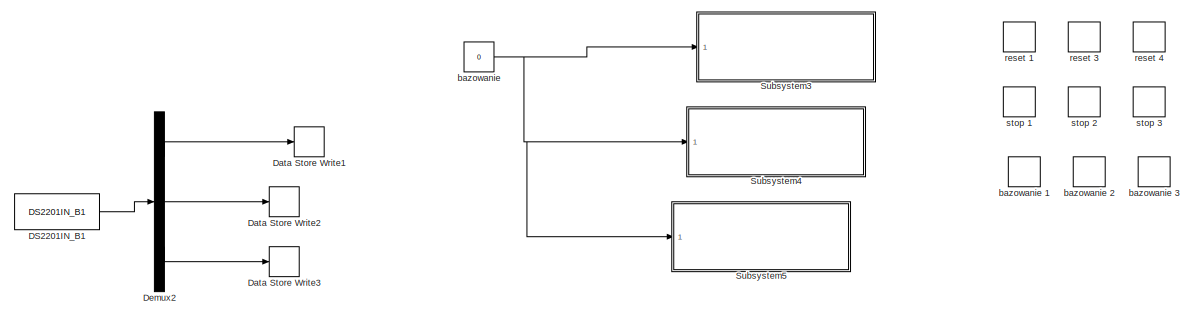
[diagram: root canvas - part 1/7, top left region]
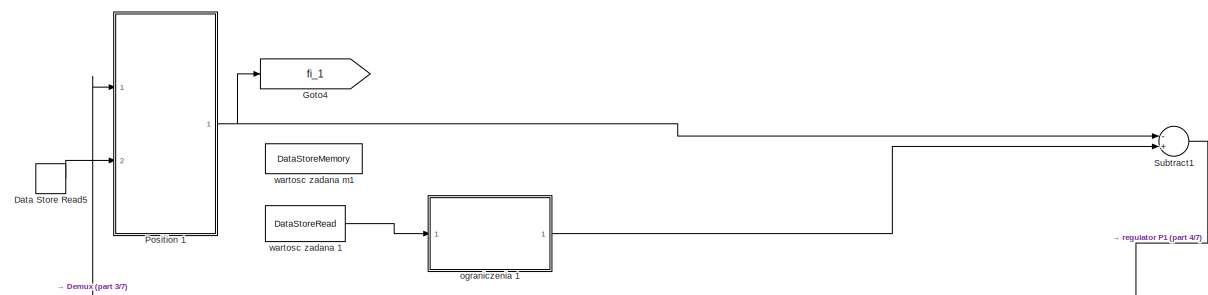
[diagram: root canvas - part 2/7, top center region]
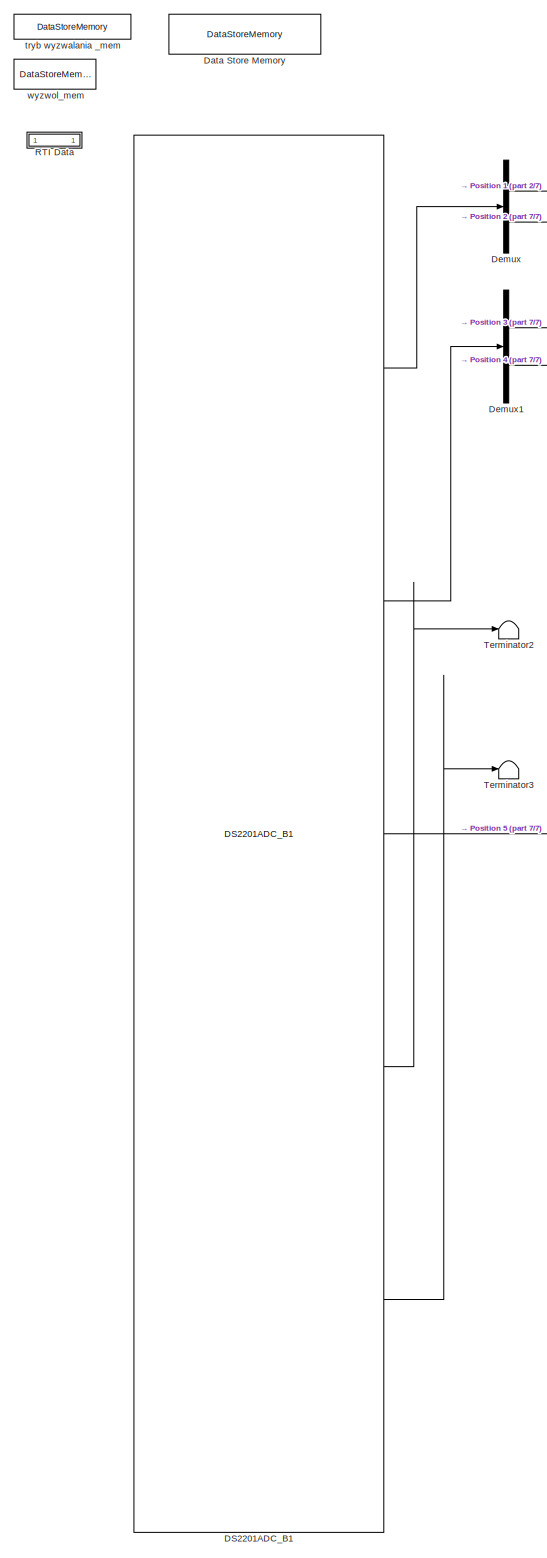
[diagram: root canvas - part 3/7, middle left region]
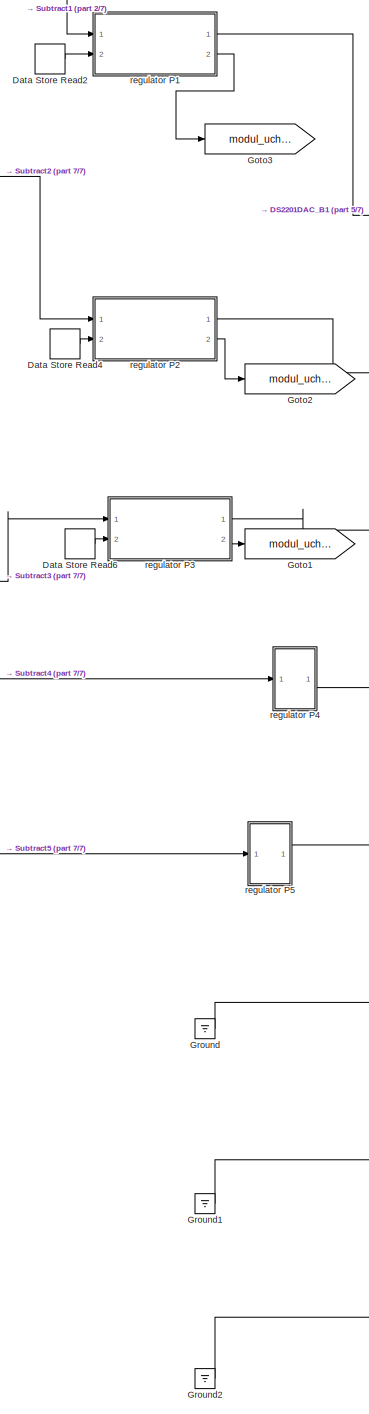
[diagram: root canvas - part 4/7, central region]
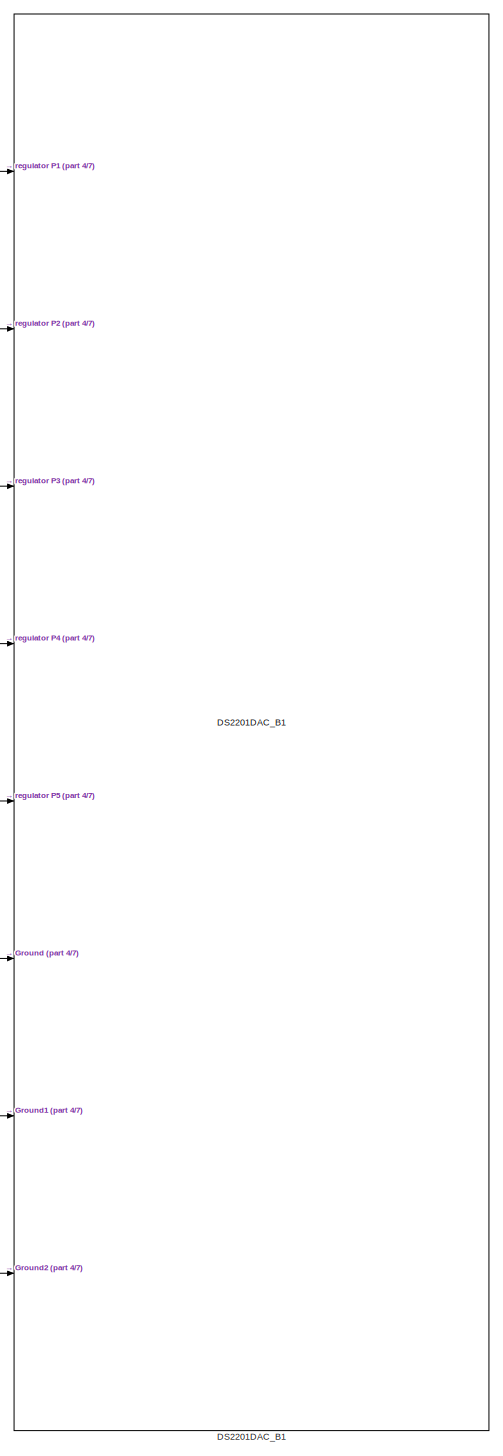
[diagram: root canvas - part 5/7, bottom center region]
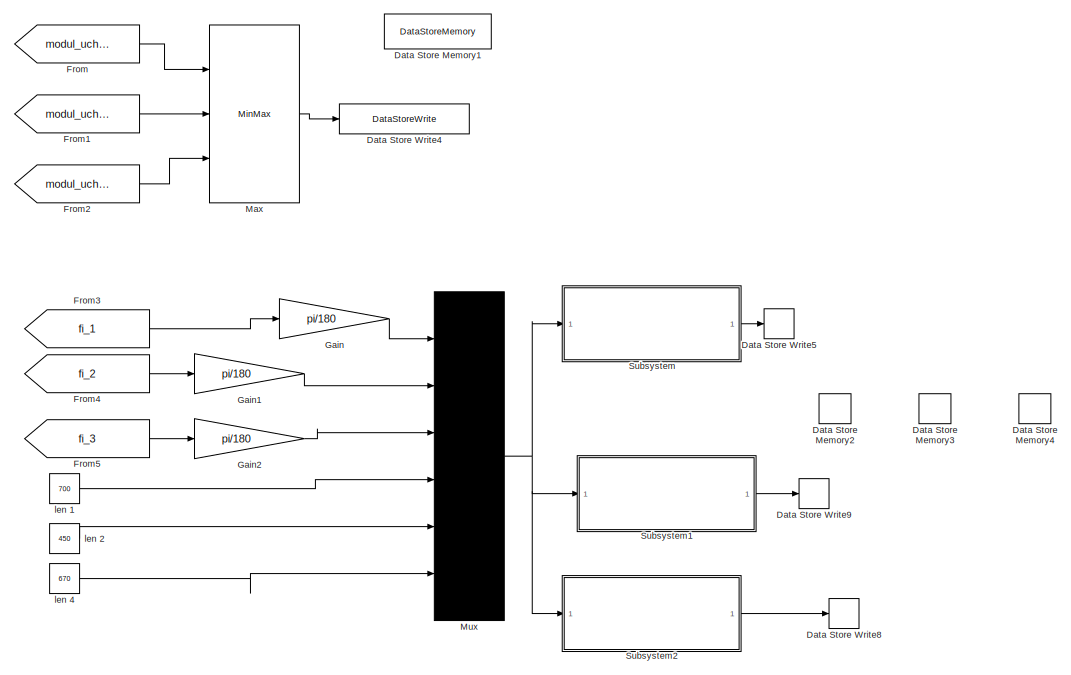
[diagram: root canvas - part 6/7, middle right region]
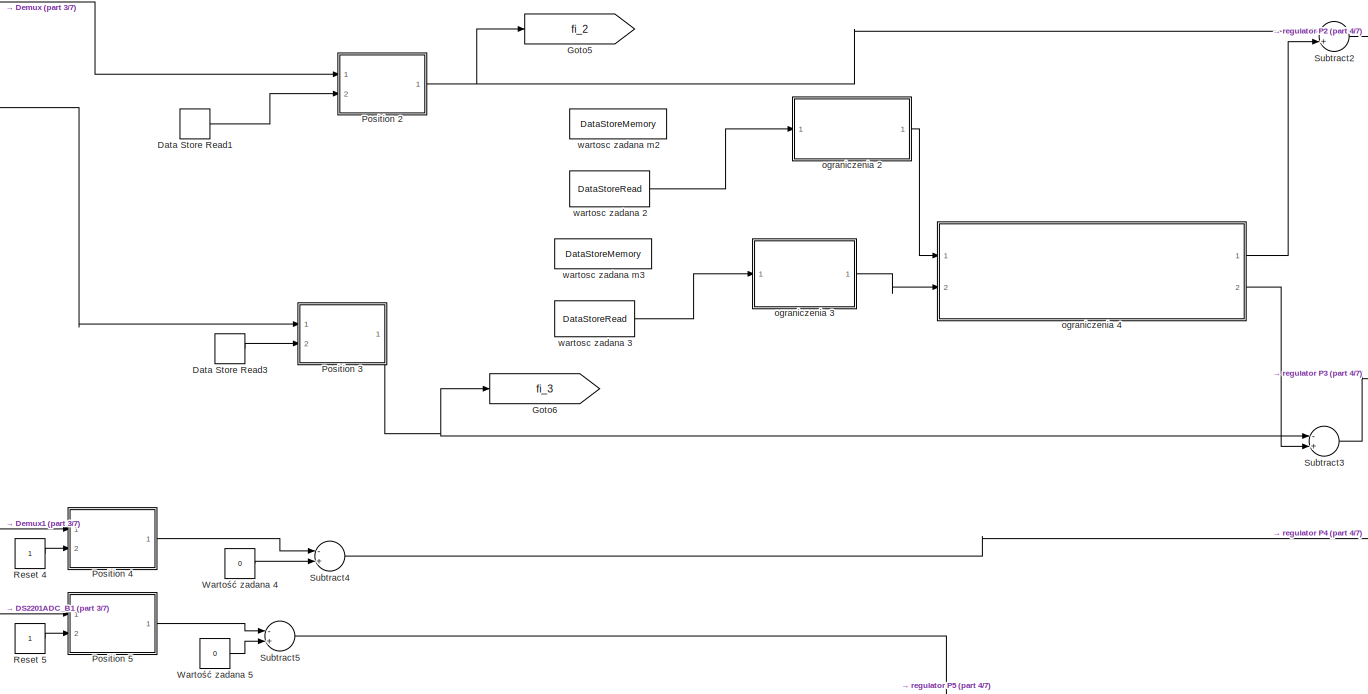
[diagram: root canvas - part 7/7, central region]
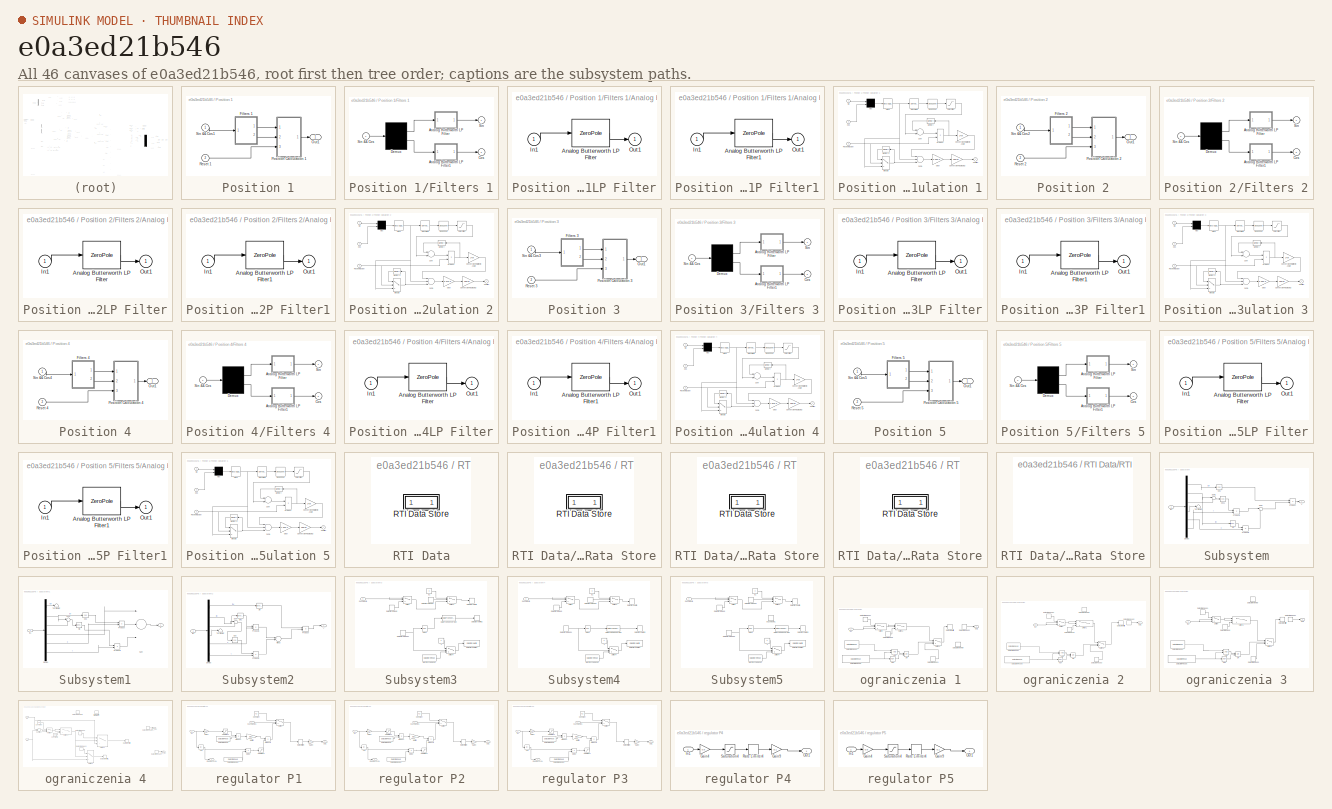
[diagram: thumbnail index - all 46 canvases of the model, root first then tree order]
MODEL slx_e0a3ed21b546
KIND model
CONFIG AbsTol = auto
CONFIG FixedStep = 0.001
CONFIG MaxStep = auto
CONFIG MinStep = auto
CONFIG PostLoadFcn = , if any(exist('dsrtsu_mdlpostloadfcn', 'file') == [2, 3, 6]), try dsrtsu_mdlpostloadfcn('Execute', bdroot); catch fprintf('Error in PostLoadFcn (dsrtsu_mdlpostloadfcn) for model "%s":\n %s\n', bdroot, lasterr); end, end, \n
CONFIG RelTol = 1e-3
CONFIG SampleTimeConstraint = Unconstrained
CONFIG Solver = ode1
CONFIG SolverMode = Auto
CONFIG SolverName = ode1
CONFIG StartTime = 0.0
CONFIG StopTime = Inf
BLOCK [Reference] DS2201ADC_B1  REF=rtilibm/DS2201/DS2201ADC_B1
  BoardNo = 1
  DSProperties = struct('RTI',struct('Version',uint32(1),'BlockType',struct('isSLSource',uint8(1),'isSLSink',uint8(0),'isHWSource',uint8(1),'isHWSink',uint8(0),'isSetup',uint8(0),'isInline',uint8(1),'isNonInline',uint8(0),'isInterrupt',uint8(0),'isChannelwise',uint8(0)),'IOBoardType','DS2201','UnitType','ADC','Identifier','ADCMUX','DialogType','ML','BlockSet','NONE','SlaveProcessor','NONE'))
  Diagnostics = AllowInheritedTsInSrc
  DialogFcn = gui2201adc
  Ports = [0, 5]
  SourceBlock = rtilibm/DS2201/DS2201ADC_B1
  SourceType = DS2201ADC
  UnitName = {'DS2201ADC_B'}
  UnitValues = { 1 }
  channelNo1 = [1 2 3 4]
  channelNo2 = [5 6 7 8]
  channelNo3 = [9 10]
  channelNo4 = -1
  channelNo5 = -1
BLOCK [Reference] DS2201DAC_B1  REF=rtilibm/DS2201/DS2201DAC_B1
  BoardNo = 1
  DSProperties = struct('RTI',struct('Version',uint32(1),'BlockType',struct('isSLSource',uint8(0),'isSLSink',uint8(1),'isHWSource',uint8(0),'isHWSink',uint8(1),'isSetup',uint8(0),'isInline',uint8(1),'isNonInline',uint8(0),'isInterrupt',uint8(0),'isChannelwise',uint8(0)),'IOBoardType','DS2201','UnitType','DAC','Identifier','DAC','DialogType','ML','BlockSet','NONE','SlaveProcessor','NONE'))
  Diagnostics = AllowInheritedTsInSrc
  DialogFcn = gui2201dac
  IOErrorMode = [0 0]
  InitValue = [0 0 0 0 0 0 0 0]
  Ports = [8]
  SourceBlock = rtilibm/DS2201/DS2201DAC_B1
  SourceType = DS2201DAC
  TermMode = [0 0 0 0 0 0 0 0]
  TermValue = [0 0 0 0 0 0 0 0]
  UnitName = {'DS2201DAC_B'}
  UnitValues = { 1 }
BLOCK [Reference] DS2201IN_B1  REF=rtilibm/DS2201/DS2201IN_B1
  BoardNo = 1
  ChannelNos = [1 2 3]
  DSProperties = struct('RTI',struct('Version',uint32(1),'BlockType',struct('isSLSource',uint8(1),'isSLSink',uint8(0),'isHWSource',uint8(1),'isHWSink',uint8(0),'isSetup',uint8(0),'isInline',uint8(1),'isNonInline',uint8(0),'isInterrupt',uint8(0),'isChannelwise',uint8(0)),'IOBoardType','DS2201','UnitType','BIT','Identifier','BITIN','DialogType','ML','BlockSet','NONE','SlaveProcessor','NONE'))
  DialogFcn = gui2201in
  Ports = [0, 1]
  SourceBlock = rtilibm/DS2201/DS2201IN_B1
  SourceType = DS2201IN
  UnitName = { 'DS2201IN_B' }
  UnitValues = { 1 }
BLOCK [DataStoreMemory] Data Store Memory
  DataStoreName = predkosc_mem
  InitialValue = 0.3
  ReadBeforeWriteMsg = warning
  WriteAfterReadMsg = warning
  WriteAfterWriteMsg = warning
BLOCK [DataStoreMemory] Data Store Memory1
  DataStoreName = maksymalny_modul
  ReadBeforeWriteMsg = warning
  WriteAfterReadMsg = warning
  WriteAfterWriteMsg = warning
BLOCK [DataStoreMemory] Data Store Memory2
  DataStoreName = x
  ReadBeforeWriteMsg = warning
  WriteAfterReadMsg = warning
  WriteAfterWriteMsg = warning
BLOCK [DataStoreMemory] Data Store Memory3
  DataStoreName = y
  ReadBeforeWriteMsg = warning
  WriteAfterReadMsg = warning
  WriteAfterWriteMsg = warning
BLOCK [DataStoreMemory] Data Store Memory4
  DataStoreName = z
  ReadBeforeWriteMsg = warning
  WriteAfterReadMsg = warning
  WriteAfterWriteMsg = warning
BLOCK [DataStoreRead] Data Store Read1
  DataStoreName = R2
  Ports = [0, 1]
BLOCK [DataStoreRead] Data Store Read2
  DataStoreName = B1
  Ports = [0, 1]
BLOCK [DataStoreRead] Data Store Read3
  DataStoreName = R3
  Ports = [0, 1]
BLOCK [DataStoreRead] Data Store Read4
  DataStoreName = B2
  Ports = [0, 1]
BLOCK [DataStoreRead] Data Store Read5
  DataStoreName = R1
  Ports = [0, 1]
BLOCK [DataStoreRead] Data Store Read6
  DataStoreName = B3
  Ports = [0, 1]
BLOCK [DataStoreWrite] Data Store Write1
  DataStoreName = S1
  Ports = [1]
BLOCK [DataStoreWrite] Data Store Write2
  DataStoreName = S2
  Ports = [1]
BLOCK [DataStoreWrite] Data Store Write3
  DataStoreName = S3
  Ports = [1]
BLOCK [DataStoreWrite] Data Store Write4
  DataStoreName = maksymalny_modul
  Ports = [1]
BLOCK [DataStoreWrite] Data Store Write5
  DataStoreName = x
  Ports = [1]
BLOCK [DataStoreWrite] Data Store Write8
  DataStoreName = y
  Ports = [1]
BLOCK [DataStoreWrite] Data Store Write9
  DataStoreName = z
  Ports = [1]
BLOCK [Demux] Demux
  DisplayOption = bar
  Outputs = 2
  Ports = [1, 2]
BLOCK [Demux] Demux1
  DisplayOption = bar
  Outputs = 2
  Ports = [1, 2]
BLOCK [Demux] Demux2
  DisplayOption = bar
  Outputs = 3
  Ports = [1, 3]
BLOCK [From] From
  GotoTag = modul_uchybu_1
BLOCK [From] From1
  GotoTag = modul_uchybu_2
BLOCK [From] From2
  GotoTag = modul_uchybu_3
BLOCK [From] From3
  GotoTag = fi_1
BLOCK [From] From4
  GotoTag = fi_2
BLOCK [From] From5
  GotoTag = fi_3
BLOCK [Gain] Gain
  Gain = pi/180
  OutDataTypeStr = Inherit: Inherit via internal rule
  ParamDataTypeStr = Inherit: Inherit via internal rule
  SaturateOnIntegerOverflow = off
BLOCK [Gain] Gain1
  Gain = pi/180
  OutDataTypeStr = Inherit: Inherit via internal rule
  ParamDataTypeStr = Inherit: Inherit via internal rule
  SaturateOnIntegerOverflow = off
BLOCK [Gain] Gain2
  Gain = pi/180
  OutDataTypeStr = Inherit: Inherit via internal rule
  ParamDataTypeStr = Inherit: Inherit via internal rule
  SaturateOnIntegerOverflow = off
BLOCK [Goto] Goto1
  GotoTag = modul_uchybu_3
BLOCK [Goto] Goto2
  GotoTag = modul_uchybu_2
BLOCK [Goto] Goto3
  GotoTag = modul_uchybu_1
BLOCK [Goto] Goto4
  GotoTag = fi_1
BLOCK [Goto] Goto5
  GotoTag = fi_2
BLOCK [Goto] Goto6
  GotoTag = fi_3
BLOCK [Ground] Ground
BLOCK [Ground] Ground1
BLOCK [Ground] Ground2
BLOCK [MinMax] Max
  Function = max
  InputSameDT = off
  Inputs = 3
  Ports = [3, 1]
  SaturateOnIntegerOverflow = off
BLOCK [Mux] Mux
  DisplayOption = bar
  Inputs = 6
  Ports = [6, 1]
BLOCK [SubSystem] Position 1
  Ports = [2, 1]
  RequestExecContextInheritance = off
BLOCK [SubSystem] Position 1/Filters 1
  Ports = [1, 2]
  RequestExecContextInheritance = off
  ShowPortLabels = none
BLOCK [SubSystem] Position 1/Filters 1/Analog Butterworth LP Filter
  Ports = [1, 1]
  RequestExecContextInheritance = off
BLOCK [ZeroPole] Position 1/Filters 1/Analog Butterworth LP Filter/Analog Butterworth LP Filter
  Gain = k
  Poles = p
  Zeros = z
BLOCK [Inport] Position 1/Filters 1/Analog Butterworth LP Filter/In1
  IconDisplay = Port number
BLOCK [Outport] Position 1/Filters 1/Analog Butterworth LP Filter/Out1
  IconDisplay = Port number
BLOCK [SubSystem] Position 1/Filters 1/Analog Butterworth LP Filter1
  Ports = [1, 1]
  RequestExecContextInheritance = off
BLOCK [ZeroPole] Position 1/Filters 1/Analog Butterworth LP Filter1/Analog Butterworth LP Filter1
  Gain = k
  Poles = p
  Zeros = z
BLOCK [Inport] Position 1/Filters 1/Analog Butterworth LP Filter1/In1
  IconDisplay = Port number
BLOCK [Outport] Position 1/Filters 1/Analog Butterworth LP Filter1/Out1
  IconDisplay = Port number
BLOCK [Outport] Position 1/Filters 1/Cos
  IconDisplay = Port number
  Port = 2
BLOCK [Demux] Position 1/Filters 1/Demux
  Outputs = 2
  Ports = [1, 2]
BLOCK [Outport] Position 1/Filters 1/Sin
  IconDisplay = Port number
BLOCK [Inport] Position 1/Filters 1/Sin && Cos
  IconDisplay = Port number
BLOCK [Outport] Position 1/Out1
  IconDisplay = Port number
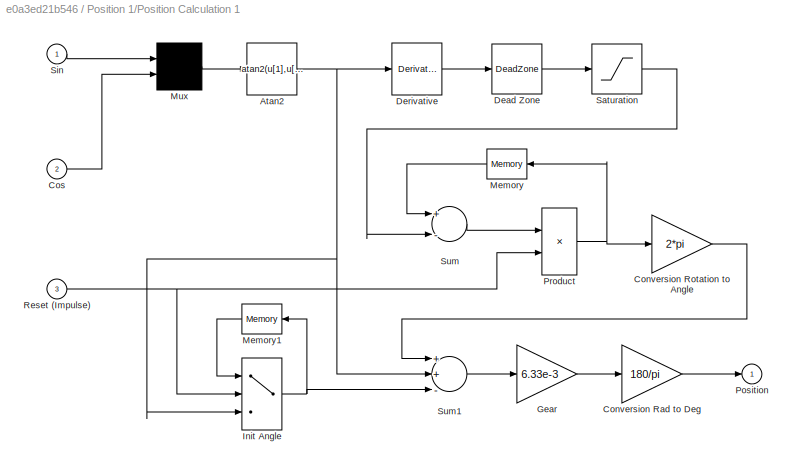
BLOCK [SubSystem] Position 1/Position Calculation 1
  Ports = [3, 1]
  RequestExecContextInheritance = off
  ShowPortLabels = none
BLOCK [Fcn] Position 1/Position Calculation 1/Atan2
  Expr = atan2(u[1],u[2])
BLOCK [Gain] Position 1/Position Calculation 1/Conversion Rad to Deg
  Gain = 180/pi
BLOCK [Gain] Position 1/Position Calculation 1/Conversion Rotation to Angle
  Gain = 2*pi
BLOCK [Inport] Position 1/Position Calculation 1/Cos
  IconDisplay = Port number
  Port = 2
BLOCK [DeadZone] Position 1/Position Calculation 1/Dead Zone
  LowerValue = -5000
  UpperValue = 5000
BLOCK [Derivative] Position 1/Position Calculation 1/Derivative
BLOCK [Gain] Position 1/Position Calculation 1/Gear
  Gain = 6.33e-3
BLOCK [Switch] Position 1/Position Calculation 1/Init Angle
  Threshold = 1
BLOCK [Memory] Position 1/Position Calculation 1/Memory
BLOCK [Memory] Position 1/Position Calculation 1/Memory1
BLOCK [Mux] Position 1/Position Calculation 1/Mux
  Inputs = 2
  Ports = [2, 1]
BLOCK [Outport] Position 1/Position Calculation 1/Position
  IconDisplay = Port number
BLOCK [Product] Position 1/Position Calculation 1/Product
  Ports = [2, 1]
BLOCK [Inport] Position 1/Position Calculation 1/Reset (Impulse)
  IconDisplay = Port number
  Port = 3
BLOCK [Saturate] Position 1/Position Calculation 1/Saturation
  InputPortMap = u0
  LowerLimit = -1
  Ports = [1, 1]
  UpperLimit = 1
BLOCK [Inport] Position 1/Position Calculation 1/Sin
  IconDisplay = Port number
BLOCK [Sum] Position 1/Position Calculation 1/Sum
  Inputs = +-
  Ports = [2, 1]
BLOCK [Sum] Position 1/Position Calculation 1/Sum1
  Inputs = ++-
  Ports = [3, 1]
BLOCK [Inport] Position 1/Reset 1
  IconDisplay = Port number
  Port = 2
BLOCK [Inport] Position 1/Sin && Cos1
  IconDisplay = Port number
BLOCK [SubSystem] Position 2
  Ports = [2, 1]
  RequestExecContextInheritance = off
BLOCK [SubSystem] Position 2/Filters 2
  Ports = [1, 2]
  RequestExecContextInheritance = off
  ShowPortLabels = none
BLOCK [SubSystem] Position 2/Filters 2/Analog Butterworth LP Filter
  Ports = [1, 1]
  RequestExecContextInheritance = off
BLOCK [ZeroPole] Position 2/Filters 2/Analog Butterworth LP Filter/Analog Butterworth LP Filter
  Gain = k
  Poles = p
  Zeros = z
BLOCK [Inport] Position 2/Filters 2/Analog Butterworth LP Filter/In1
  IconDisplay = Port number
BLOCK [Outport] Position 2/Filters 2/Analog Butterworth LP Filter/Out1
  IconDisplay = Port number
BLOCK [SubSystem] Position 2/Filters 2/Analog Butterworth LP Filter1
  Ports = [1, 1]
  RequestExecContextInheritance = off
BLOCK [ZeroPole] Position 2/Filters 2/Analog Butterworth LP Filter1/Analog Butterworth LP Filter1
  Gain = k
  Poles = p
  Zeros = z
BLOCK [Inport] Position 2/Filters 2/Analog Butterworth LP Filter1/In1
  IconDisplay = Port number
BLOCK [Outport] Position 2/Filters 2/Analog Butterworth LP Filter1/Out1
  IconDisplay = Port number
BLOCK [Outport] Position 2/Filters 2/Cos
  IconDisplay = Port number
  Port = 2
BLOCK [Demux] Position 2/Filters 2/Demux
  Outputs = 2
  Ports = [1, 2]
BLOCK [Outport] Position 2/Filters 2/Sin
  IconDisplay = Port number
BLOCK [Inport] Position 2/Filters 2/Sin && Cos
  IconDisplay = Port number
BLOCK [Outport] Position 2/Out1
  IconDisplay = Port number
BLOCK [SubSystem] Position 2/Position Calculation 2
  Ports = [3, 1]
  RequestExecContextInheritance = off
  ShowPortLabels = none
BLOCK [Fcn] Position 2/Position Calculation 2/Atan2
  Expr = atan2(u[1],u[2])
BLOCK [Gain] Position 2/Position Calculation 2/Conversion Rad to Deg
  Gain = 180/pi
BLOCK [Gain] Position 2/Position Calculation 2/Conversion Rotation to Angle
  Gain = 2*pi
BLOCK [Inport] Position 2/Position Calculation 2/Cos
  IconDisplay = Port number
  Port = 2
BLOCK [DeadZone] Position 2/Position Calculation 2/Dead Zone
  LowerValue = -5000
  UpperValue = 5000
BLOCK [Derivative] Position 2/Position Calculation 2/Derivative
BLOCK [Gain] Position 2/Position Calculation 2/Gear
  Gain = 6.37e-3
BLOCK [Switch] Position 2/Position Calculation 2/Init Angle
  Threshold = 1
BLOCK [Memory] Position 2/Position Calculation 2/Memory
BLOCK [Memory] Position 2/Position Calculation 2/Memory1
BLOCK [Mux] Position 2/Position Calculation 2/Mux
  Inputs = 2
  Ports = [2, 1]
BLOCK [Outport] Position 2/Position Calculation 2/Position
  IconDisplay = Port number
BLOCK [Product] Position 2/Position Calculation 2/Product
  Ports = [2, 1]
BLOCK [Inport] Position 2/Position Calculation 2/Reset (Impulse)
  IconDisplay = Port number
  Port = 3
BLOCK [Saturate] Position 2/Position Calculation 2/Saturation
  InputPortMap = u0
  LowerLimit = -1
  Ports = [1, 1]
  UpperLimit = 1
BLOCK [Inport] Position 2/Position Calculation 2/Sin
  IconDisplay = Port number
BLOCK [Sum] Position 2/Position Calculation 2/Sum
  Inputs = +-
  Ports = [2, 1]
BLOCK [Sum] Position 2/Position Calculation 2/Sum1
  Inputs = ++-
  Ports = [3, 1]
BLOCK [Inport] Position 2/Reset 2
  IconDisplay = Port number
  Port = 2
BLOCK [Inport] Position 2/Sin && Cos2
  IconDisplay = Port number
BLOCK [SubSystem] Position 3
  Ports = [2, 1]
  RequestExecContextInheritance = off
BLOCK [SubSystem] Position 3/Filters 3
  Ports = [1, 2]
  RequestExecContextInheritance = off
  ShowPortLabels = none
BLOCK [SubSystem] Position 3/Filters 3/Analog Butterworth LP Filter
  Ports = [1, 1]
  RequestExecContextInheritance = off
BLOCK [ZeroPole] Position 3/Filters 3/Analog Butterworth LP Filter/Analog Butterworth LP Filter
  Gain = k
  Poles = p
  Zeros = z
BLOCK [Inport] Position 3/Filters 3/Analog Butterworth LP Filter/In1
  IconDisplay = Port number
BLOCK [Outport] Position 3/Filters 3/Analog Butterworth LP Filter/Out1
  IconDisplay = Port number
BLOCK [SubSystem] Position 3/Filters 3/Analog Butterworth LP Filter1
  Ports = [1, 1]
  RequestExecContextInheritance = off
BLOCK [ZeroPole] Position 3/Filters 3/Analog Butterworth LP Filter1/Analog Butterworth LP Filter1
  Gain = k
  Poles = p
  Zeros = z
BLOCK [Inport] Position 3/Filters 3/Analog Butterworth LP Filter1/In1
  IconDisplay = Port number
BLOCK [Outport] Position 3/Filters 3/Analog Butterworth LP Filter1/Out1
  IconDisplay = Port number
BLOCK [Outport] Position 3/Filters 3/Cos
  IconDisplay = Port number
  Port = 2
BLOCK [Demux] Position 3/Filters 3/Demux
  Outputs = 2
  Ports = [1, 2]
BLOCK [Outport] Position 3/Filters 3/Sin
  IconDisplay = Port number
BLOCK [Inport] Position 3/Filters 3/Sin && Cos
  IconDisplay = Port number
BLOCK [Outport] Position 3/Out1
  IconDisplay = Port number
BLOCK [SubSystem] Position 3/Position Calculation 3
  Ports = [3, 1]
  RequestExecContextInheritance = off
  ShowPortLabels = none
BLOCK [Fcn] Position 3/Position Calculation 3/Atan2
  Expr = atan2(u[1],u[2])
BLOCK [Gain] Position 3/Position Calculation 3/Conversion Rad to Deg
  Gain = 180/pi
BLOCK [Gain] Position 3/Position Calculation 3/Conversion Rotation to Angle
  Gain = 2*pi
BLOCK [Inport] Position 3/Position Calculation 3/Cos
  IconDisplay = Port number
  Port = 2
BLOCK [DeadZone] Position 3/Position Calculation 3/Dead Zone
  LowerValue = -5000
  UpperValue = 5000
BLOCK [Derivative] Position 3/Position Calculation 3/Derivative
BLOCK [Gain] Position 3/Position Calculation 3/Gear
  Gain = 6.33e-3
BLOCK [Switch] Position 3/Position Calculation 3/Init Angle
  Threshold = 1
BLOCK [Memory] Position 3/Position Calculation 3/Memory
BLOCK [Memory] Position 3/Position Calculation 3/Memory1
BLOCK [Mux] Position 3/Position Calculation 3/Mux
  Inputs = 2
  Ports = [2, 1]
BLOCK [Outport] Position 3/Position Calculation 3/Position
  IconDisplay = Port number
BLOCK [Product] Position 3/Position Calculation 3/Product
  Ports = [2, 1]
BLOCK [Inport] Position 3/Position Calculation 3/Reset (Impulse)
  IconDisplay = Port number
  Port = 3
BLOCK [Saturate] Position 3/Position Calculation 3/Saturation
  InputPortMap = u0
  LowerLimit = -1
  Ports = [1, 1]
  UpperLimit = 1
BLOCK [Inport] Position 3/Position Calculation 3/Sin
  IconDisplay = Port number
BLOCK [Sum] Position 3/Position Calculation 3/Sum
  Inputs = +-
  Ports = [2, 1]
BLOCK [Sum] Position 3/Position Calculation 3/Sum1
  Inputs = ++-
  Ports = [3, 1]
BLOCK [Inport] Position 3/Reset 3
  IconDisplay = Port number
  Port = 2
BLOCK [Inport] Position 3/Sin && Cos3
  IconDisplay = Port number
BLOCK [SubSystem] Position 4
  Ports = [2, 1]
  RequestExecContextInheritance = off
BLOCK [SubSystem] Position 4/Filters 4
  Ports = [1, 2]
  RequestExecContextInheritance = off
  ShowPortLabels = none
BLOCK [SubSystem] Position 4/Filters 4/Analog Butterworth LP Filter
  Ports = [1, 1]
  RequestExecContextInheritance = off
BLOCK [ZeroPole] Position 4/Filters 4/Analog Butterworth LP Filter/Analog Butterworth LP Filter
  Gain = k
  Poles = p
  Zeros = z
BLOCK [Inport] Position 4/Filters 4/Analog Butterworth LP Filter/In1
  IconDisplay = Port number
BLOCK [Outport] Position 4/Filters 4/Analog Butterworth LP Filter/Out1
  IconDisplay = Port number
BLOCK [SubSystem] Position 4/Filters 4/Analog Butterworth LP Filter1
  Ports = [1, 1]
  RequestExecContextInheritance = off
BLOCK [ZeroPole] Position 4/Filters 4/Analog Butterworth LP Filter1/Analog Butterworth LP Filter1
  Gain = k
  Poles = p
  Zeros = z
BLOCK [Inport] Position 4/Filters 4/Analog Butterworth LP Filter1/In1
  IconDisplay = Port number
BLOCK [Outport] Position 4/Filters 4/Analog Butterworth LP Filter1/Out1
  IconDisplay = Port number
BLOCK [Outport] Position 4/Filters 4/Cos
  IconDisplay = Port number
  Port = 2
BLOCK [Demux] Position 4/Filters 4/Demux
  Outputs = 2
  Ports = [1, 2]
BLOCK [Outport] Position 4/Filters 4/Sin
  IconDisplay = Port number
BLOCK [Inport] Position 4/Filters 4/Sin && Cos
  IconDisplay = Port number
BLOCK [Outport] Position 4/Out1
  IconDisplay = Port number
BLOCK [SubSystem] Position 4/Position Calculation 4
  Ports = [3, 1]
  RequestExecContextInheritance = off
  ShowPortLabels = none
BLOCK [Fcn] Position 4/Position Calculation 4/Atan2
  Expr = atan2(u[1],u[2])
BLOCK [Gain] Position 4/Position Calculation 4/Conversion Rad to Deg
  Gain = 180/pi
BLOCK [Gain] Position 4/Position Calculation 4/Conversion Rotation to Angle
  Gain = 2*pi
BLOCK [Inport] Position 4/Position Calculation 4/Cos
  IconDisplay = Port number
  Port = 2
BLOCK [DeadZone] Position 4/Position Calculation 4/Dead Zone
  LowerValue = -5000
  UpperValue = 5000
BLOCK [Derivative] Position 4/Position Calculation 4/Derivative
BLOCK [Gain] Position 4/Position Calculation 4/Gear
  Gain = 7.87e-3
BLOCK [Switch] Position 4/Position Calculation 4/Init Angle
  Threshold = 1
BLOCK [Memory] Position 4/Position Calculation 4/Memory
BLOCK [Memory] Position 4/Position Calculation 4/Memory1
BLOCK [Mux] Position 4/Position Calculation 4/Mux
  Inputs = 2
  Ports = [2, 1]
BLOCK [Outport] Position 4/Position Calculation 4/Position
  IconDisplay = Port number
BLOCK [Product] Position 4/Position Calculation 4/Product
  Ports = [2, 1]
BLOCK [Inport] Position 4/Position Calculation 4/Reset (Impulse)
  IconDisplay = Port number
  Port = 3
BLOCK [Saturate] Position 4/Position Calculation 4/Saturation
  InputPortMap = u0
  LowerLimit = -1
  Ports = [1, 1]
  UpperLimit = 1
BLOCK [Inport] Position 4/Position Calculation 4/Sin
  IconDisplay = Port number
BLOCK [Sum] Position 4/Position Calculation 4/Sum
  Inputs = +-
  Ports = [2, 1]
BLOCK [Sum] Position 4/Position Calculation 4/Sum1
  Inputs = ++-
  Ports = [3, 1]
BLOCK [Inport] Position 4/Reset 4
  IconDisplay = Port number
  Port = 2
BLOCK [Inport] Position 4/Sin && Cos4
  IconDisplay = Port number
BLOCK [SubSystem] Position 5
  Ports = [2, 1]
  RequestExecContextInheritance = off
BLOCK [SubSystem] Position 5/Filters 5
  Ports = [1, 2]
  RequestExecContextInheritance = off
  ShowPortLabels = none
BLOCK [SubSystem] Position 5/Filters 5/Analog Butterworth LP Filter
  Ports = [1, 1]
  RequestExecContextInheritance = off
BLOCK [ZeroPole] Position 5/Filters 5/Analog Butterworth LP Filter/Analog Butterworth LP Filter
  Gain = k
  Poles = p
  Zeros = z
BLOCK [Inport] Position 5/Filters 5/Analog Butterworth LP Filter/In1
  IconDisplay = Port number
BLOCK [Outport] Position 5/Filters 5/Analog Butterworth LP Filter/Out1
  IconDisplay = Port number
BLOCK [SubSystem] Position 5/Filters 5/Analog Butterworth LP Filter1
  Ports = [1, 1]
  RequestExecContextInheritance = off
BLOCK [ZeroPole] Position 5/Filters 5/Analog Butterworth LP Filter1/Analog Butterworth LP Filter1
  Gain = k
  Poles = p
  Zeros = z
BLOCK [Inport] Position 5/Filters 5/Analog Butterworth LP Filter1/In1
  IconDisplay = Port number
BLOCK [Outport] Position 5/Filters 5/Analog Butterworth LP Filter1/Out1
  IconDisplay = Port number
BLOCK [Outport] Position 5/Filters 5/Cos
  IconDisplay = Port number
  Port = 2
BLOCK [Demux] Position 5/Filters 5/Demux
  Outputs = 2
  Ports = [1, 2]
BLOCK [Outport] Position 5/Filters 5/Sin
  IconDisplay = Port number
BLOCK [Inport] Position 5/Filters 5/Sin && Cos
  IconDisplay = Port number
BLOCK [Outport] Position 5/Out1
  IconDisplay = Port number
BLOCK [SubSystem] Position 5/Position Calculation 5
  Ports = [3, 1]
  RequestExecContextInheritance = off
  ShowPortLabels = none
BLOCK [Fcn] Position 5/Position Calculation 5/Atan2
  Expr = atan2(u[1],u[2])
BLOCK [Gain] Position 5/Position Calculation 5/Conversion Rad to Deg
  Gain = 180/pi
BLOCK [Gain] Position 5/Position Calculation 5/Conversion Rotation to Angle
  Gain = 2*pi
BLOCK [Inport] Position 5/Position Calculation 5/Cos
  IconDisplay = Port number
  Port = 2
BLOCK [DeadZone] Position 5/Position Calculation 5/Dead Zone
  LowerValue = -5000
  UpperValue = 5000
BLOCK [Derivative] Position 5/Position Calculation 5/Derivative
BLOCK [Gain] Position 5/Position Calculation 5/Gear
  Gain = 1.32e-2
BLOCK [Switch] Position 5/Position Calculation 5/Init Angle
  Threshold = 1
BLOCK [Memory] Position 5/Position Calculation 5/Memory
BLOCK [Memory] Position 5/Position Calculation 5/Memory1
BLOCK [Mux] Position 5/Position Calculation 5/Mux
  Inputs = 2
  Ports = [2, 1]
BLOCK [Outport] Position 5/Position Calculation 5/Position
  IconDisplay = Port number
BLOCK [Product] Position 5/Position Calculation 5/Product
  Ports = [2, 1]
BLOCK [Inport] Position 5/Position Calculation 5/Reset (Impulse)
  IconDisplay = Port number
  Port = 3
BLOCK [Saturate] Position 5/Position Calculation 5/Saturation
  InputPortMap = u0
  LowerLimit = -1
  Ports = [1, 1]
  UpperLimit = 1
BLOCK [Inport] Position 5/Position Calculation 5/Sin
  IconDisplay = Port number
BLOCK [Sum] Position 5/Position Calculation 5/Sum
  Inputs = +-
  Ports = [2, 1]
BLOCK [Sum] Position 5/Position Calculation 5/Sum1
  Inputs = ++-
  Ports = [3, 1]
BLOCK [Inport] Position 5/Reset 5
  IconDisplay = Port number
  Port = 2
BLOCK [Inport] Position 5/Sin && Cos5
  IconDisplay = Port number
BLOCK [SubSystem] RTI Data
  CopyFcn = if exist('rtidc'), try,  rtidc('DataHostBlockClbCopy', gcbh); catch, disp(['Warning: ''CopyFcn'' for RTI Data block failed: ' lasterr]); end, end,
  DeleteFcn = if exist('rtidc'), try,  rtidc('DataHostBlockClbDelete', gcbh); catch, disp(['Warning: ''DeleteFcn'' for RTI Data block failed: ' lasterr]); end, end,
  LoadFcn = if exist('rtidc'), try,  rtidc('DataHostBlockClbLoad', gcbh); catch, disp(['Warning: ''LoadFcn'' for RTI Data block failed: ' lasterr]); end, end,
  ModelCloseFcn = if exist('rtidc'), try,  rtidc('DataHostBlockClbModelClose', gcbh); catch, disp(['Warning: ''ModelCloseFcn'' for RTI Data block failed: ' lasterr]); end, end,
  NameChangeFcn = if exist('rtidc'), try,  rtidc('DataHostBlockClbNameChange', gcbh); catch, disp(['Warning: ''NameChangeFcn'' for RTI Data block failed: ' lasterr]); end, end,
  Ports = []
  PostSaveFcn = if exist('rtidc'), try,  rtidc('DataHostBlockClbPostSave', gcbh); catch, disp(['Warning: ''PostSaveFcn'' for RTI Data block failed: ' lasterr]); end, end,
  PreSaveFcn = if exist('rtidc'), try,  rtidc('DataHostBlockClbPreSave', gcbh); catch, disp(['Warning: ''PreSaveFcn'' for RTI Data block failed: ' lasterr]); end, end,
  RequestExecContextInheritance = off
  Tag = struct('RTIDataServer',struct('RTIDataServerVs','2','RTIModelDescription','struct(''main'',''schemat_koncowy_irp'',''sub'',''schemat_koncowy_irp'',''isMp'',0)'))
BLOCK [SubSystem] RTI Data/RTI Data Store
  Ports = []
  RequestExecContextInheritance = off
  Tag = struct('private',struct('version',struct('dsVer',uint32(2),'dsVerCreation',uint32(2),'RTI',struct('ver','7.4','type','RTI1005')),'access',struct('type','Model','isPerm',1,'created',['18-Oct-2021 10:10:05'],'modified',['08-Nov-2021 10:46:14'],'location','')),'public',struct('main',struct('data',[]),'sub',struct('name',{{'schemat_koncowy_irp'}},'data',{{struct('TH',struct('thTaskInfo',struct('taskTy...<+896ch>
BLOCK [SubSystem] RTI Data/RTI Data Store/RTI Data Store
  Ports = []
  RequestExecContextInheritance = off
BLOCK [SubSystem] RTI Data/RTI Data Store/RTI Data Store/RTI Data Store
  Ports = []
  RequestExecContextInheritance = off
BLOCK [SubSystem] RTI Data/RTI Data Store/RTI Data Store/RTI Data Store/RTI Data Store
  Ports = []
  RequestExecContextInheritance = off
BLOCK [Constant] Reset 4
BLOCK [Constant] Reset 5
BLOCK [SubSystem] Subsystem
  Ports = [1, 1]
  RequestExecContextInheritance = off
BLOCK [Trigonometry] Subsystem/Cos
  Operator = cos
  Ports = [1, 1]
BLOCK [Trigonometry] Subsystem/Cos1
  Operator = cos
  Ports = [1, 1]
BLOCK [Demux] Subsystem/Demux
  DisplayOption = bar
  Outputs = 6
  Ports = [1, 6]
BLOCK [Inport] Subsystem/In1
  IconDisplay = Port number
BLOCK [Product] Subsystem/Product
  InputSameDT = off
  OutDataTypeStr = Inherit: Inherit via internal rule
  Ports = [2, 1]
  RndMeth = Floor
  SaturateOnIntegerOverflow = off
BLOCK [Product] Subsystem/Product1
  InputSameDT = off
  OutDataTypeStr = Inherit: Inherit via internal rule
  Ports = [2, 1]
  RndMeth = Floor
  SaturateOnIntegerOverflow = off
BLOCK [Product] Subsystem/Product2
  InputSameDT = off
  OutDataTypeStr = Inherit: Inherit via internal rule
  Ports = [2, 1]
  RndMeth = Floor
  SaturateOnIntegerOverflow = off
BLOCK [Trigonometry] Subsystem/Sin
  Ports = [1, 1]
BLOCK [Sum] Subsystem/Sum
  IconShape = round
  InputSameDT = off
  Inputs = |+-
  OutDataTypeStr = Inherit: Inherit via internal rule
  Ports = [2, 1]
  SaturateOnIntegerOverflow = off
BLOCK [Sum] Subsystem/Sum1
  IconShape = round
  InputSameDT = off
  Inputs = |++
  OutDataTypeStr = Inherit: Inherit via internal rule
  Ports = [2, 1]
  SaturateOnIntegerOverflow = off
BLOCK [Terminator] Subsystem/Terminator
BLOCK [Outport] Subsystem/x
  IconDisplay = Port number
BLOCK [SubSystem] Subsystem1
  Ports = [1, 1]
  RequestExecContextInheritance = off
BLOCK [Trigonometry] Subsystem1/Cos
  Operator = cos
  Ports = [1, 1]
BLOCK [Demux] Subsystem1/Demux
  DisplayOption = bar
  Outputs = 6
  Ports = [1, 6]
BLOCK [Inport] Subsystem1/In1
  IconDisplay = Port number
BLOCK [Product] Subsystem1/Product
  InputSameDT = off
  OutDataTypeStr = Inherit: Inherit via internal rule
  Ports = [2, 1]
  RndMeth = Floor
  SaturateOnIntegerOverflow = off
BLOCK [Product] Subsystem1/Product1
  InputSameDT = off
  OutDataTypeStr = Inherit: Inherit via internal rule
  Ports = [2, 1]
  RndMeth = Floor
  SaturateOnIntegerOverflow = off
BLOCK [Trigonometry] Subsystem1/Sin
  Ports = [1, 1]
BLOCK [Sum] Subsystem1/Sum
  InputSameDT = off
  Inputs = 3
  OutDataTypeStr = Inherit: Inherit via internal rule
  Ports = [3, 1]
  SaturateOnIntegerOverflow = off
BLOCK [Sum] Subsystem1/Sum1
  IconShape = round
  InputSameDT = off
  Inputs = |++
  OutDataTypeStr = Inherit: Inherit via internal rule
  Ports = [2, 1]
  SaturateOnIntegerOverflow = off
BLOCK [Terminator] Subsystem1/Terminator
BLOCK [Outport] Subsystem1/z
  IconDisplay = Port number
BLOCK [SubSystem] Subsystem2
  Ports = [1, 1]
  RequestExecContextInheritance = off
BLOCK [Trigonometry] Subsystem2/Cos
  Operator = cos
  Ports = [1, 1]
BLOCK [Demux] Subsystem2/Demux
  DisplayOption = bar
  Outputs = 6
  Ports = [1, 6]
BLOCK [Inport] Subsystem2/In1
  IconDisplay = Port number
BLOCK [Sum] Subsystem2/Minus
  InputSameDT = off
  Inputs = +-
  OutDataTypeStr = Inherit: Inherit via internal rule
  Ports = [2, 1]
  SaturateOnIntegerOverflow = off
BLOCK [Product] Subsystem2/Product
  InputSameDT = off
  OutDataTypeStr = Inherit: Inherit via internal rule
  Ports = [2, 1]
  RndMeth = Floor
  SaturateOnIntegerOverflow = off
BLOCK [Product] Subsystem2/Product1
  InputSameDT = off
  OutDataTypeStr = Inherit: Inherit via internal rule
  Ports = [2, 1]
  RndMeth = Floor
  SaturateOnIntegerOverflow = off
BLOCK [Product] Subsystem2/Product2
  InputSameDT = off
  OutDataTypeStr = Inherit: Inherit via internal rule
  Ports = [2, 1]
  RndMeth = Floor
  SaturateOnIntegerOverflow = off
BLOCK [Trigonometry] Subsystem2/Sin
  Ports = [1, 1]
BLOCK [Trigonometry] Subsystem2/Sin1
  Ports = [1, 1]
BLOCK [Sum] Subsystem2/Sum
  IconShape = round
  InputSameDT = off
  Inputs = |++
  OutDataTypeStr = Inherit: Inherit via internal rule
  Ports = [2, 1]
  SaturateOnIntegerOverflow = off
BLOCK [Terminator] Subsystem2/Terminator
BLOCK [Outport] Subsystem2/y
  IconDisplay = Port number
BLOCK [SubSystem] Subsystem3
  Ports = [1]
  RequestExecContextInheritance = off
BLOCK [Constant] Subsystem3/01
  Value = 0
BLOCK [Constant] Subsystem3/4
  Value = 0
BLOCK [DataStoreRead] Subsystem3/Data Store Read
  DataStoreName = B1
  Ports = [0, 1]
BLOCK [DataStoreRead] Subsystem3/Data Store Read1
  DataStoreName = B1
  Ports = [0, 1]
BLOCK [DataStoreRead] Subsystem3/Data Store Read2
  DataStoreName = S1
  Ports = [0, 1]
BLOCK [DataStoreWrite] Subsystem3/Data Store Write
  DataStoreName = B1
  Ports = [1]
BLOCK [DataStoreWrite] Subsystem3/Data Store Write2
  DataStoreName = R1
  Ports = [1]
BLOCK [DataStoreWrite] Subsystem3/Data Store Write3
  DataStoreName = Wartosc1
  Ports = [1]
BLOCK [DataTypeConversion] Subsystem3/Data Type Conversion
  OutDataTypeStr = double
  RndMeth = Floor
  SaturateOnIntegerOverflow = off
BLOCK [Logic] Subsystem3/NOT1
  AllPortsSameDT = off
  IconShape = distinctive
  Operator = NOT
  OutDataTypeStr = boolean
  Ports = [1, 1]
BLOCK [Switch] Subsystem3/Switch
  Criteria = u2 > Threshold
  InputSameDT = off
  SaturateOnIntegerOverflow = off
BLOCK [Switch] Subsystem3/Switch1
  Criteria = u2 > Threshold
  InputSameDT = off
  SaturateOnIntegerOverflow = off
BLOCK [Switch] Subsystem3/Switch4
  Criteria = u2 > Threshold
  InputSameDT = off
  SaturateOnIntegerOverflow = off
BLOCK [Inport] Subsystem3/bazowanie
  IconDisplay = Port number
BLOCK [DataStoreRead] Subsystem3/wartosc zadana 1
  DataStoreName = Wartosc1
  Ports = [0, 1]
BLOCK [SubSystem] Subsystem4
  Ports = [1]
  RequestExecContextInheritance = off
BLOCK [Constant] Subsystem4/01
  Value = 0
BLOCK [Constant] Subsystem4/4
  Value = 0
BLOCK [DataStoreRead] Subsystem4/Data Store Read
  DataStoreName = B2
  Ports = [0, 1]
BLOCK [DataStoreRead] Subsystem4/Data Store Read1
  DataStoreName = B2
  Ports = [0, 1]
BLOCK [DataStoreRead] Subsystem4/Data Store Read2
  DataStoreName = S2
  Ports = [0, 1]
BLOCK [DataStoreWrite] Subsystem4/Data Store Write
  DataStoreName = B2
  Ports = [1]
BLOCK [DataStoreWrite] Subsystem4/Data Store Write2
  DataStoreName = R2
  Ports = [1]
BLOCK [DataStoreWrite] Subsystem4/Data Store Write3
  DataStoreName = Wartosc2
  Ports = [1]
BLOCK [DataTypeConversion] Subsystem4/Data Type Conversion
  OutDataTypeStr = double
  RndMeth = Floor
  SaturateOnIntegerOverflow = off
BLOCK [Logic] Subsystem4/NOT1
  AllPortsSameDT = off
  IconShape = distinctive
  Operator = NOT
  OutDataTypeStr = boolean
  Ports = [1, 1]
BLOCK [Switch] Subsystem4/Switch
  Criteria = u2 > Threshold
  InputSameDT = off
  SaturateOnIntegerOverflow = off
BLOCK [Switch] Subsystem4/Switch1
  Criteria = u2 > Threshold
  InputSameDT = off
  SaturateOnIntegerOverflow = off
BLOCK [Switch] Subsystem4/Switch4
  Criteria = u2 > Threshold
  InputSameDT = off
  SaturateOnIntegerOverflow = off
BLOCK [Inport] Subsystem4/bazowanie
  IconDisplay = Port number
BLOCK [DataStoreRead] Subsystem4/wartosc zadana 2
  DataStoreName = Wartosc2
  Ports = [0, 1]
BLOCK [SubSystem] Subsystem5
  Ports = [1]
  RequestExecContextInheritance = off
BLOCK [Constant] Subsystem5/01
  Value = 0
BLOCK [Constant] Subsystem5/4
  Value = 0
BLOCK [DataStoreRead] Subsystem5/Data Store Read
  DataStoreName = B3
  Ports = [0, 1]
BLOCK [DataStoreRead] Subsystem5/Data Store Read1
  DataStoreName = S3
  Ports = [0, 1]
BLOCK [DataStoreRead] Subsystem5/Data Store Read3
  DataStoreName = B3
  Ports = [0, 1]
BLOCK [DataStoreWrite] Subsystem5/Data Store Write
  DataStoreName = B3
  Ports = [1]
BLOCK [DataStoreWrite] Subsystem5/Data Store Write2
  DataStoreName = R3
  Ports = [1]
BLOCK [DataStoreWrite] Subsystem5/Data Store Write3
  DataStoreName = Wartosc3
  Ports = [1]
BLOCK [DataTypeConversion] Subsystem5/Data Type Conversion
  OutDataTypeStr = double
  RndMeth = Floor
  SaturateOnIntegerOverflow = off
BLOCK [Logic] Subsystem5/NOT1
  AllPortsSameDT = off
  IconShape = distinctive
  Operator = NOT
  OutDataTypeStr = boolean
  Ports = [1, 1]
BLOCK [Switch] Subsystem5/Switch
  Criteria = u2 > Threshold
  InputSameDT = off
  SaturateOnIntegerOverflow = off
BLOCK [Switch] Subsystem5/Switch1
  Criteria = u2 > Threshold
  InputSameDT = off
  SaturateOnIntegerOverflow = off
BLOCK [Switch] Subsystem5/Switch4
  Criteria = u2 > Threshold
  InputSameDT = off
  SaturateOnIntegerOverflow = off
BLOCK [Inport] Subsystem5/bazowanie
  IconDisplay = Port number
BLOCK [DataStoreMemory] Subsystem5/bazowanie 1
  DataStoreName = B1
  ReadBeforeWriteMsg = warning
  WriteAfterReadMsg = warning
  WriteAfterWriteMsg = warning
BLOCK [DataStoreRead] Subsystem5/wartosc zadana 3
  DataStoreName = Wartosc3
  Ports = [0, 1]
BLOCK [Sum] Subtract1
  InputSameDT = off
  Inputs = -+
  OutDataTypeStr = Inherit: Inherit via internal rule
  Ports = [2, 1]
  SaturateOnIntegerOverflow = off
BLOCK [Sum] Subtract2
  InputSameDT = off
  Inputs = -+
  OutDataTypeStr = Inherit: Inherit via internal rule
  Ports = [2, 1]
  SaturateOnIntegerOverflow = off
BLOCK [Sum] Subtract3
  InputSameDT = off
  Inputs = -+
  OutDataTypeStr = Inherit: Inherit via internal rule
  Ports = [2, 1]
  SaturateOnIntegerOverflow = off
BLOCK [Sum] Subtract4
  InputSameDT = off
  Inputs = -+
  OutDataTypeStr = Inherit: Inherit via internal rule
  Ports = [2, 1]
  SaturateOnIntegerOverflow = off
BLOCK [Sum] Subtract5
  InputSameDT = off
  Inputs = -+
  OutDataTypeStr = Inherit: Inherit via internal rule
  Ports = [2, 1]
  SaturateOnIntegerOverflow = off
BLOCK [Terminator] Terminator2
BLOCK [Terminator] Terminator3
BLOCK [Constant] Wartość zadana 4
  Value = 0
BLOCK [Constant] Wartość zadana 5
  Value = 0
BLOCK [Constant] bazowanie 
  Value = 0
BLOCK [DataStoreMemory] bazowanie 1
  DataStoreName = B1
  ReadBeforeWriteMsg = warning
  WriteAfterReadMsg = warning
  WriteAfterWriteMsg = warning
BLOCK [DataStoreMemory] bazowanie 2
  DataStoreName = B2
  ReadBeforeWriteMsg = warning
  WriteAfterReadMsg = warning
  WriteAfterWriteMsg = warning
BLOCK [DataStoreMemory] bazowanie 3
  DataStoreName = B3
  ReadBeforeWriteMsg = warning
  WriteAfterReadMsg = warning
  WriteAfterWriteMsg = warning
BLOCK [Constant] len 1
  Value = 700
BLOCK [Constant] len 2
  Value = 450
BLOCK [Constant] len 4
  Value = 670
BLOCK [SubSystem] ograniczenia 1
  Ports = [1, 1]
  RequestExecContextInheritance = off
BLOCK [Logic] ograniczenia 1/AND
  AllPortsSameDT = off
  IconShape = distinctive
  OutDataTypeStr = boolean
  Ports = [2, 1]
BLOCK [DataStoreMemory] ograniczenia 1/Data Store Memory
  DataStoreName = Z1
  ReadBeforeWriteMsg = warning
  WriteAfterReadMsg = warning
  WriteAfterWriteMsg = warning
BLOCK [DataStoreRead] ograniczenia 1/Data Store Read
  DataStoreName = Z1
  Ports = [0, 1]
BLOCK [DataStoreRead] ograniczenia 1/Data Store Read1
  DataStoreName = Z1
  Ports = [0, 1]
BLOCK [DataStoreRead] ograniczenia 1/Data Store Read2
  DataStoreName = Z1
  Ports = [0, 1]
BLOCK [DataStoreRead] ograniczenia 1/Data Store Read3
  DataStoreName = wyzwol_mem
  Ports = [0, 1]
BLOCK [DataStoreRead] ograniczenia 1/Data Store Read4
  DataStoreName = Z1
  Ports = [0, 1]
BLOCK [DataStoreRead] ograniczenia 1/Data Store Read5
  DataStoreName = tryb_wyzwalania_mem
  Ports = [0, 1]
BLOCK [DataStoreWrite] ograniczenia 1/Data Store Write
  DataStoreName = Z1
  Ports = [1]
BLOCK [Inport] ograniczenia 1/In1
  IconDisplay = Port number
BLOCK [Logic] ograniczenia 1/NOT
  AllPortsSameDT = off
  IconShape = distinctive
  Operator = NOT
  OutDataTypeStr = boolean
  Ports = [1, 1]
BLOCK [Logic] ograniczenia 1/OR
  AllPortsSameDT = off
  IconShape = distinctive
  Operator = OR
  OutDataTypeStr = boolean
  Ports = [2, 1]
BLOCK [Outport] ograniczenia 1/Out1
  IconDisplay = Port number
BLOCK [Switch] ograniczenia 1/Switch
  Criteria = u2 > Threshold
  InputSameDT = off
  SaturateOnIntegerOverflow = off
  Threshold = 160
BLOCK [Switch] ograniczenia 1/Switch1
  Criteria = u2 > Threshold
  InputSameDT = off
  SaturateOnIntegerOverflow = off
  Threshold = -160
BLOCK [Switch] ograniczenia 1/Switch2
  Criteria = u2 ~= 0
  InputSameDT = off
  SaturateOnIntegerOverflow = off
  Threshold = -160
BLOCK [SubSystem] ograniczenia 2
  Ports = [1, 1]
  RequestExecContextInheritance = off
BLOCK [Logic] ograniczenia 2/AND
  AllPortsSameDT = off
  IconShape = distinctive
  OutDataTypeStr = boolean
  Ports = [2, 1]
BLOCK [DataStoreMemory] ograniczenia 2/Data Store Memory
  DataStoreName = Z2
  ReadBeforeWriteMsg = warning
  WriteAfterReadMsg = warning
  WriteAfterWriteMsg = warning
BLOCK [DataStoreRead] ograniczenia 2/Data Store Read
  DataStoreName = Z2
  Ports = [0, 1]
BLOCK [DataStoreRead] ograniczenia 2/Data Store Read1
  DataStoreName = Z2
  Ports = [0, 1]
BLOCK [DataStoreRead] ograniczenia 2/Data Store Read2
  DataStoreName = Z2
  Ports = [0, 1]
BLOCK [DataStoreRead] ograniczenia 2/Data Store Read3
  DataStoreName = Z2
  Ports = [0, 1]
BLOCK [DataStoreRead] ograniczenia 2/Data Store Read4
  DataStoreName = wyzwol_mem
  Ports = [0, 1]
BLOCK [DataStoreRead] ograniczenia 2/Data Store Read5
  DataStoreName = tryb_wyzwalania_mem
  Ports = [0, 1]
BLOCK [DataStoreWrite] ograniczenia 2/Data Store Write
  DataStoreName = Z2
  Ports = [1]
BLOCK [Inport] ograniczenia 2/In1
  IconDisplay = Port number
BLOCK [Logic] ograniczenia 2/NOT
  AllPortsSameDT = off
  IconShape = distinctive
  Operator = NOT
  OutDataTypeStr = boolean
  Ports = [1, 1]
BLOCK [Logic] ograniczenia 2/OR
  AllPortsSameDT = off
  IconShape = distinctive
  Operator = OR
  OutDataTypeStr = boolean
  Ports = [2, 1]
BLOCK [Outport] ograniczenia 2/Out1
  IconDisplay = Port number
BLOCK [Switch] ograniczenia 2/Switch
  Criteria = u2 > Threshold
  InputSameDT = off
  SaturateOnIntegerOverflow = off
  Threshold = 40
BLOCK [Switch] ograniczenia 2/Switch1
  Criteria = u2 > Threshold
  InputSameDT = off
  SaturateOnIntegerOverflow = off
  Threshold = -40
BLOCK [Switch] ograniczenia 2/Switch2
  Criteria = u2 ~= 0
  InputSameDT = off
  SaturateOnIntegerOverflow = off
  Threshold = -160
BLOCK [SubSystem] ograniczenia 3
  Ports = [1, 1]
  RequestExecContextInheritance = off
BLOCK [Logic] ograniczenia 3/AND
  AllPortsSameDT = off
  IconShape = distinctive
  OutDataTypeStr = boolean
  Ports = [2, 1]
BLOCK [DataStoreMemory] ograniczenia 3/Data Store Memory
  DataStoreName = Z3
  ReadBeforeWriteMsg = warning
  WriteAfterReadMsg = warning
  WriteAfterWriteMsg = warning
BLOCK [DataStoreRead] ograniczenia 3/Data Store Read
  DataStoreName = Z3
  Ports = [0, 1]
BLOCK [DataStoreRead] ograniczenia 3/Data Store Read1
  DataStoreName = Z3
  Ports = [0, 1]
BLOCK [DataStoreRead] ograniczenia 3/Data Store Read2
  DataStoreName = Z3
  Ports = [0, 1]
BLOCK [DataStoreRead] ograniczenia 3/Data Store Read3
  DataStoreName = Z3
  Ports = [0, 1]
BLOCK [DataStoreRead] ograniczenia 3/Data Store Read4
  DataStoreName = wyzwol_mem
  Ports = [0, 1]
BLOCK [DataStoreRead] ograniczenia 3/Data Store Read5
  DataStoreName = tryb_wyzwalania_mem
  Ports = [0, 1]
BLOCK [DataStoreWrite] ograniczenia 3/Data Store Write
  DataStoreName = Z3
  Ports = [1]
BLOCK [Inport] ograniczenia 3/In1
  IconDisplay = Port number
BLOCK [Logic] ograniczenia 3/NOT
  AllPortsSameDT = off
  IconShape = distinctive
  Operator = NOT
  OutDataTypeStr = boolean
  Ports = [1, 1]
BLOCK [Logic] ograniczenia 3/OR
  AllPortsSameDT = off
  IconShape = distinctive
  Operator = OR
  OutDataTypeStr = boolean
  Ports = [2, 1]
BLOCK [Outport] ograniczenia 3/Out1
  IconDisplay = Port number
BLOCK [Switch] ograniczenia 3/Switch
  Criteria = u2 > Threshold
  InputSameDT = off
  SaturateOnIntegerOverflow = off
  Threshold = 40
BLOCK [Switch] ograniczenia 3/Switch1
  Criteria = u2 > Threshold
  InputSameDT = off
  SaturateOnIntegerOverflow = off
  Threshold = -25
BLOCK [Switch] ograniczenia 3/Switch2
  Criteria = u2 ~= 0
  InputSameDT = off
  SaturateOnIntegerOverflow = off
  Threshold = -160
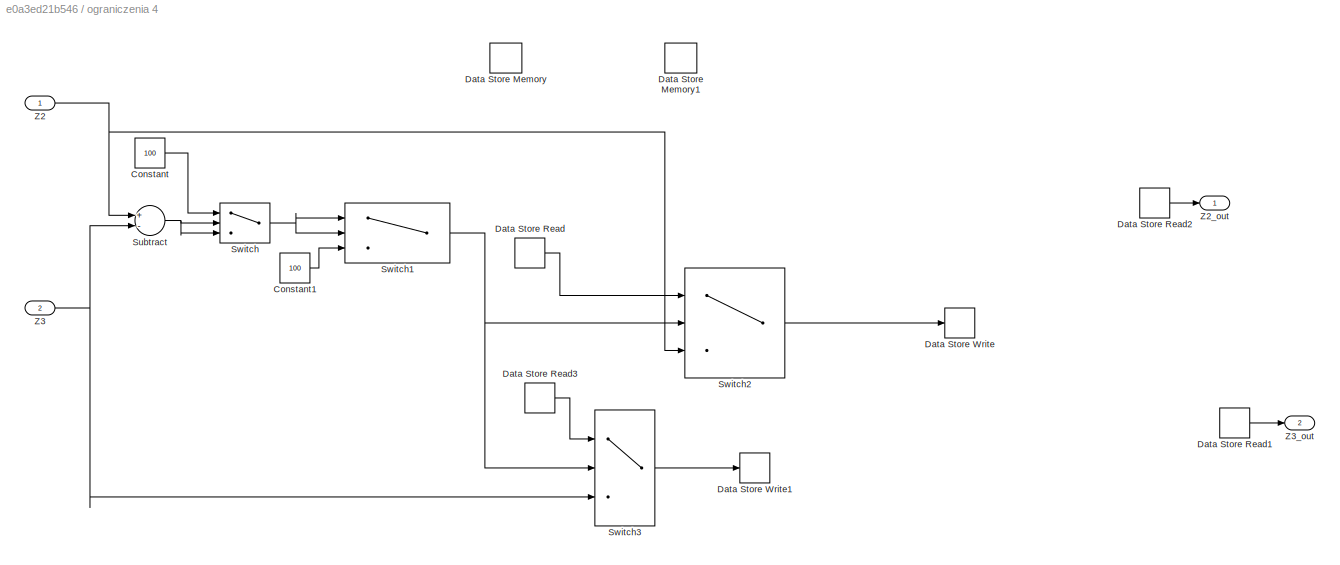
BLOCK [SubSystem] ograniczenia 4
  Ports = [2, 2]
  RequestExecContextInheritance = off
BLOCK [Constant] ograniczenia 4/Constant
  Value = 100
BLOCK [Constant] ograniczenia 4/Constant1
  Value = 100
BLOCK [DataStoreMemory] ograniczenia 4/Data Store Memory
  DataStoreName = Z2
  ReadBeforeWriteMsg = warning
  WriteAfterReadMsg = warning
  WriteAfterWriteMsg = warning
BLOCK [DataStoreMemory] ograniczenia 4/Data Store Memory1
  DataStoreName = Z3
  ReadBeforeWriteMsg = warning
  WriteAfterReadMsg = warning
  WriteAfterWriteMsg = warning
BLOCK [DataStoreRead] ograniczenia 4/Data Store Read
  DataStoreName = Z2
  Ports = [0, 1]
BLOCK [DataStoreRead] ograniczenia 4/Data Store Read1
  DataStoreName = Z3
  Ports = [0, 1]
BLOCK [DataStoreRead] ograniczenia 4/Data Store Read2
  DataStoreName = Z2
  Ports = [0, 1]
BLOCK [DataStoreRead] ograniczenia 4/Data Store Read3
  DataStoreName = Z3
  Ports = [0, 1]
BLOCK [DataStoreWrite] ograniczenia 4/Data Store Write
  DataStoreName = Z2
  Ports = [1]
BLOCK [DataStoreWrite] ograniczenia 4/Data Store Write1
  DataStoreName = Z3
  Ports = [1]
BLOCK [Sum] ograniczenia 4/Subtract
  InputSameDT = off
  Inputs = +-
  OutDataTypeStr = Inherit: Inherit via internal rule
  Ports = [2, 1]
  SaturateOnIntegerOverflow = off
BLOCK [Switch] ograniczenia 4/Switch
  Criteria = u2 > Threshold
  InputSameDT = off
  SaturateOnIntegerOverflow = off
  Threshold = 40
BLOCK [Switch] ograniczenia 4/Switch1
  Criteria = u2 > Threshold
  InputSameDT = off
  SaturateOnIntegerOverflow = off
  Threshold = -40
BLOCK [Switch] ograniczenia 4/Switch2
  InputSameDT = off
  SaturateOnIntegerOverflow = off
  Threshold = 100
BLOCK [Switch] ograniczenia 4/Switch3
  InputSameDT = off
  SaturateOnIntegerOverflow = off
  Threshold = 100
BLOCK [Inport] ograniczenia 4/Z2
  IconDisplay = Port number
BLOCK [Outport] ograniczenia 4/Z2_out
  IconDisplay = Port number
BLOCK [Inport] ograniczenia 4/Z3
  IconDisplay = Port number
  Port = 2
BLOCK [Outport] ograniczenia 4/Z3_out 
  IconDisplay = Port number
  Port = 2
BLOCK [SubSystem] regulator P1
  Ports = [2, 2]
  RequestExecContextInheritance = off
BLOCK [Abs] regulator P1/Abs
  SaturateOnIntegerOverflow = off
BLOCK [Constant] regulator P1/Constant
  Value = -0.3
BLOCK [DataStoreRead] regulator P1/Data Store Read
  DataStoreName = predkosc_mem
  Ports = [0, 1]
BLOCK [DataStoreRead] regulator P1/Data Store Read1
  DataStoreName = maksymalny_modul
  Ports = [0, 1]
BLOCK [Product] regulator P1/Divide
  InputSameDT = off
  Inputs = */
  OutDataTypeStr = Inherit: Inherit via internal rule
  Ports = [2, 1]
  RndMeth = Floor
  SaturateOnIntegerOverflow = off
BLOCK [Gain] regulator P1/Gain4
  Gain = 0.5
  OutDataTypeStr = Inherit: Inherit via internal rule
  ParamDataTypeStr = Inherit: Inherit via internal rule
  SaturateOnIntegerOverflow = off
BLOCK [Gain] regulator P1/Gain9
  Gain = 0.1
  OutDataTypeStr = Inherit: Inherit via internal rule
  ParamDataTypeStr = Inherit: Inherit via internal rule
  SaturateOnIntegerOverflow = off
BLOCK [Inport] regulator P1/In1
  IconDisplay = Port number
BLOCK [Gain] regulator P1/Multiply
  Gain = 0.01
  OutDataTypeStr = Inherit: Inherit via internal rule
  ParamDataTypeStr = Inherit: Inherit via internal rule
  SaturateOnIntegerOverflow = off
BLOCK [Outport] regulator P1/Out1
  IconDisplay = Port number
BLOCK [Product] regulator P1/Product
  InputSameDT = off
  OutDataTypeStr = Inherit: Inherit via internal rule
  Ports = [2, 1]
  RndMeth = Floor
  SaturateOnIntegerOverflow = off
BLOCK [Product] regulator P1/Product1
  InputSameDT = off
  OutDataTypeStr = Inherit: Inherit via internal rule
  Ports = [2, 1]
  RndMeth = Floor
  SaturateOnIntegerOverflow = off
BLOCK [RateLimiter] regulator P1/Rate Limiter4
  FallingSlewLimit = -50
  RisingSlewLimit = 50
  SampleTimeMode = inherited
BLOCK [Saturate] regulator P1/Saturation1
  InputPortMap = u0
  LowerLimit = 0.001
  Ports = [1, 1]
  UpperLimit = 1
BLOCK [Saturate] regulator P1/Saturation4
  InputPortMap = u0
  LowerLimit = -3
  Ports = [1, 1]
  UpperLimit = 3
BLOCK [Switch] regulator P1/Switch
  Criteria = u2 > Threshold
  InputSameDT = off
  SaturateOnIntegerOverflow = off
BLOCK [Inport] regulator P1/bazowanie 1
  IconDisplay = Port number
  Port = 2
BLOCK [Outport] regulator P1/modul uchybu
  IconDisplay = Port number
  Port = 2
BLOCK [SubSystem] regulator P2
  Ports = [2, 2]
  RequestExecContextInheritance = off
BLOCK [Abs] regulator P2/Abs
  SaturateOnIntegerOverflow = off
BLOCK [Constant] regulator P2/Constant
  Value = -0.3
BLOCK [DataStoreRead] regulator P2/Data Store Read
  DataStoreName = predkosc_mem
  Ports = [0, 1]
BLOCK [DataStoreRead] regulator P2/Data Store Read1
  DataStoreName = maksymalny_modul
  Ports = [0, 1]
BLOCK [Product] regulator P2/Divide
  InputSameDT = off
  Inputs = */
  OutDataTypeStr = Inherit: Inherit via internal rule
  Ports = [2, 1]
  RndMeth = Floor
  SaturateOnIntegerOverflow = off
BLOCK [Gain] regulator P2/Gain4
  Gain = 0.5
  OutDataTypeStr = Inherit: Inherit via internal rule
  ParamDataTypeStr = Inherit: Inherit via internal rule
  SaturateOnIntegerOverflow = off
BLOCK [Gain] regulator P2/Gain9
  Gain = 0.1
  OutDataTypeStr = Inherit: Inherit via internal rule
  ParamDataTypeStr = Inherit: Inherit via internal rule
  SaturateOnIntegerOverflow = off
BLOCK [Inport] regulator P2/In1
  IconDisplay = Port number
BLOCK [Gain] regulator P2/Multiply
  Gain = 0.01
  OutDataTypeStr = Inherit: Inherit via internal rule
  ParamDataTypeStr = Inherit: Inherit via internal rule
  SaturateOnIntegerOverflow = off
BLOCK [Outport] regulator P2/Out1
  IconDisplay = Port number
BLOCK [Product] regulator P2/Product
  InputSameDT = off
  OutDataTypeStr = Inherit: Inherit via internal rule
  Ports = [2, 1]
  RndMeth = Floor
  SaturateOnIntegerOverflow = off
BLOCK [Product] regulator P2/Product1
  InputSameDT = off
  OutDataTypeStr = Inherit: Inherit via internal rule
  Ports = [2, 1]
  RndMeth = Floor
  SaturateOnIntegerOverflow = off
BLOCK [RateLimiter] regulator P2/Rate Limiter4
  FallingSlewLimit = -50
  RisingSlewLimit = 50
  SampleTimeMode = inherited
BLOCK [Saturate] regulator P2/Saturation1
  InputPortMap = u0
  LowerLimit = 0.001
  Ports = [1, 1]
  UpperLimit = 1
BLOCK [Saturate] regulator P2/Saturation4
  InputPortMap = u0
  LowerLimit = -3
  Ports = [1, 1]
  UpperLimit = 3
BLOCK [Switch] regulator P2/Switch
  Criteria = u2 > Threshold
  InputSameDT = off
  SaturateOnIntegerOverflow = off
BLOCK [Inport] regulator P2/bazowanie 1
  IconDisplay = Port number
  Port = 2
BLOCK [Outport] regulator P2/modul uchybu
  IconDisplay = Port number
  Port = 2
BLOCK [SubSystem] regulator P3
  Ports = [2, 2]
  RequestExecContextInheritance = off
BLOCK [Abs] regulator P3/Abs
  SaturateOnIntegerOverflow = off
BLOCK [Constant] regulator P3/Constant
  Value = -0.3
BLOCK [DataStoreRead] regulator P3/Data Store Read
  DataStoreName = predkosc_mem
  Ports = [0, 1]
BLOCK [DataStoreRead] regulator P3/Data Store Read1
  DataStoreName = maksymalny_modul
  Ports = [0, 1]
BLOCK [Product] regulator P3/Divide
  InputSameDT = off
  Inputs = */
  OutDataTypeStr = Inherit: Inherit via internal rule
  Ports = [2, 1]
  RndMeth = Floor
  SaturateOnIntegerOverflow = off
BLOCK [Gain] regulator P3/Gain4
  Gain = 0.5
  OutDataTypeStr = Inherit: Inherit via internal rule
  ParamDataTypeStr = Inherit: Inherit via internal rule
  SaturateOnIntegerOverflow = off
BLOCK [Gain] regulator P3/Gain9
  Gain = 0.1
  OutDataTypeStr = Inherit: Inherit via internal rule
  ParamDataTypeStr = Inherit: Inherit via internal rule
  SaturateOnIntegerOverflow = off
BLOCK [Inport] regulator P3/In1
  IconDisplay = Port number
BLOCK [Gain] regulator P3/Multiply
  Gain = 0.01
  OutDataTypeStr = Inherit: Inherit via internal rule
  ParamDataTypeStr = Inherit: Inherit via internal rule
  SaturateOnIntegerOverflow = off
BLOCK [Outport] regulator P3/Out1
  IconDisplay = Port number
BLOCK [Product] regulator P3/Product
  InputSameDT = off
  OutDataTypeStr = Inherit: Inherit via internal rule
  Ports = [2, 1]
  RndMeth = Floor
  SaturateOnIntegerOverflow = off
BLOCK [Product] regulator P3/Product1
  InputSameDT = off
  OutDataTypeStr = Inherit: Inherit via internal rule
  Ports = [2, 1]
  RndMeth = Floor
  SaturateOnIntegerOverflow = off
BLOCK [RateLimiter] regulator P3/Rate Limiter4
  FallingSlewLimit = -50
  RisingSlewLimit = 50
  SampleTimeMode = inherited
BLOCK [Saturate] regulator P3/Saturation1
  InputPortMap = u0
  LowerLimit = 0.001
  Ports = [1, 1]
  UpperLimit = 1
BLOCK [Saturate] regulator P3/Saturation4
  InputPortMap = u0
  LowerLimit = -3
  Ports = [1, 1]
  UpperLimit = 3
BLOCK [Switch] regulator P3/Switch
  Criteria = u2 > Threshold
  InputSameDT = off
  SaturateOnIntegerOverflow = off
BLOCK [Inport] regulator P3/bazowanie 1
  IconDisplay = Port number
  Port = 2
BLOCK [Outport] regulator P3/modul uchybu
  IconDisplay = Port number
  Port = 2
BLOCK [SubSystem] regulator P4
  Ports = [1, 1]
  RequestExecContextInheritance = off
BLOCK [Gain] regulator P4/Gain4
  Gain = 0.5
  OutDataTypeStr = Inherit: Inherit via internal rule
  ParamDataTypeStr = Inherit: Inherit via internal rule
  SaturateOnIntegerOverflow = off
BLOCK [Gain] regulator P4/Gain9
  Gain = 0.1
  OutDataTypeStr = Inherit: Inherit via internal rule
  ParamDataTypeStr = Inherit: Inherit via internal rule
  SaturateOnIntegerOverflow = off
BLOCK [Inport] regulator P4/In1
  IconDisplay = Port number
BLOCK [Outport] regulator P4/Out1
  IconDisplay = Port number
BLOCK [RateLimiter] regulator P4/Rate Limiter4
  FallingSlewLimit = -50
  RisingSlewLimit = 50
  SampleTimeMode = inherited
BLOCK [Saturate] regulator P4/Saturation4
  InputPortMap = u0
  LowerLimit = -3
  Ports = [1, 1]
  UpperLimit = 3
BLOCK [SubSystem] regulator P5
  Ports = [1, 1]
  RequestExecContextInheritance = off
BLOCK [Gain] regulator P5/Gain4
  Gain = 0.5
  OutDataTypeStr = Inherit: Inherit via internal rule
  ParamDataTypeStr = Inherit: Inherit via internal rule
  SaturateOnIntegerOverflow = off
BLOCK [Gain] regulator P5/Gain9
  Gain = 0.1
  OutDataTypeStr = Inherit: Inherit via internal rule
  ParamDataTypeStr = Inherit: Inherit via internal rule
  SaturateOnIntegerOverflow = off
BLOCK [Inport] regulator P5/In1
  IconDisplay = Port number
BLOCK [Outport] regulator P5/Out1
  IconDisplay = Port number
BLOCK [RateLimiter] regulator P5/Rate Limiter4
  FallingSlewLimit = -50
  RisingSlewLimit = 50
  SampleTimeMode = inherited
BLOCK [Saturate] regulator P5/Saturation4
  InputPortMap = u0
  LowerLimit = -3
  Ports = [1, 1]
  UpperLimit = 3
BLOCK [DataStoreMemory] reset 1
  DataStoreName = R1
  OutDataTypeStr = double
  ReadBeforeWriteMsg = warning
  WriteAfterReadMsg = warning
  WriteAfterWriteMsg = warning
BLOCK [DataStoreMemory] reset 3
  DataStoreName = R2
  OutDataTypeStr = double
  ReadBeforeWriteMsg = warning
  WriteAfterReadMsg = warning
  WriteAfterWriteMsg = warning
BLOCK [DataStoreMemory] reset 4
  DataStoreName = R3
  OutDataTypeStr = double
  ReadBeforeWriteMsg = warning
  WriteAfterReadMsg = warning
  WriteAfterWriteMsg = warning
BLOCK [DataStoreMemory] stop 1
  DataStoreName = S1
  ReadBeforeWriteMsg = warning
  WriteAfterReadMsg = warning
  WriteAfterWriteMsg = warning
BLOCK [DataStoreMemory] stop 2
  DataStoreName = S2
  ReadBeforeWriteMsg = warning
  WriteAfterReadMsg = warning
  WriteAfterWriteMsg = warning
BLOCK [DataStoreMemory] stop 3
  DataStoreName = S3
  ReadBeforeWriteMsg = warning
  WriteAfterReadMsg = warning
  WriteAfterWriteMsg = warning
BLOCK [DataStoreMemory] tryb wyzwalania _mem 
  DataStoreName = tryb_wyzwalania_mem
  ReadBeforeWriteMsg = warning
  WriteAfterReadMsg = warning
  WriteAfterWriteMsg = warning
BLOCK [DataStoreRead] wartosc zadana 1
  DataStoreName = Wartosc1
  Ports = [0, 1]
BLOCK [DataStoreRead] wartosc zadana 2
  DataStoreName = Wartosc2
  Ports = [0, 1]
BLOCK [DataStoreRead] wartosc zadana 3
  DataStoreName = Wartosc3
  Ports = [0, 1]
BLOCK [DataStoreMemory] wartosc zadana m1
  DataStoreName = Wartosc1
  ReadBeforeWriteMsg = warning
  WriteAfterReadMsg = warning
  WriteAfterWriteMsg = warning
BLOCK [DataStoreMemory] wartosc zadana m2
  DataStoreName = Wartosc2
  ReadBeforeWriteMsg = warning
  WriteAfterReadMsg = warning
  WriteAfterWriteMsg = warning
BLOCK [DataStoreMemory] wartosc zadana m3
  DataStoreName = Wartosc3
  ReadBeforeWriteMsg = warning
  WriteAfterReadMsg = warning
  WriteAfterWriteMsg = warning
BLOCK [DataStoreMemory] wyzwol_mem
  DataStoreName = wyzwol_mem
  ReadBeforeWriteMsg = warning
  WriteAfterReadMsg = warning
  WriteAfterWriteMsg = warning
LINE DS2201ADC_B1:1 -> Demux:1
LINE DS2201ADC_B1:2 -> Demux1:1
LINE DS2201ADC_B1:3 -> Position 5:1
LINE DS2201ADC_B1:4 -> Terminator2:1
LINE DS2201ADC_B1:5 -> Terminator3:1
LINE DS2201IN_B1:1 -> Demux2:1
LINE Data Store Read1:1 -> Position 2:2
LINE Data Store Read2:1 -> regulator P1:2
LINE Data Store Read3:1 -> Position 3:2
LINE Data Store Read4:1 -> regulator P2:2
LINE Data Store Read5:1 -> Position 1:2
LINE Data Store Read6:1 -> regulator P3:2
LINE Demux1:1 -> Position 3:1
LINE Demux1:2 -> Position 4:1
LINE Demux2:1 -> Data Store Write1:1
LINE Demux2:2 -> Data Store Write2:1
LINE Demux2:3 -> Data Store Write3:1
LINE Demux:1 -> Position 1:1
LINE Demux:2 -> Position 2:1
LINE From1:1 -> Max:2
LINE From2:1 -> Max:3
LINE From3:1 -> Gain:1
LINE From4:1 -> Gain1:1
LINE From5:1 -> Gain2:1
LINE From:1 -> Max:1
LINE Gain1:1 -> Mux:2
LINE Gain2:1 -> Mux:3
LINE Gain:1 -> Mux:1
LINE Ground1:1 -> DS2201DAC_B1:7
LINE Ground2:1 -> DS2201DAC_B1:8
LINE Ground:1 -> DS2201DAC_B1:6
LINE Max:1 -> Data Store Write4:1
NET Mux:1 -> Subsystem1:1, Subsystem2:1, Subsystem:1
LINE Position 1/Filters 1/Analog Butterworth LP Filter/Analog Butterworth LP Filter:1 -> Position 1/Filters 1/Analog Butterworth LP Filter/Out1:1
LINE Position 1/Filters 1/Analog Butterworth LP Filter/In1:1 -> Position 1/Filters 1/Analog Butterworth LP Filter/Analog Butterworth LP Filter:1
LINE Position 1/Filters 1/Analog Butterworth LP Filter1/Analog Butterworth LP Filter1:1 -> Position 1/Filters 1/Analog Butterworth LP Filter1/Out1:1
LINE Position 1/Filters 1/Analog Butterworth LP Filter1/In1:1 -> Position 1/Filters 1/Analog Butterworth LP Filter1/Analog Butterworth LP Filter1:1
LINE Position 1/Filters 1/Analog Butterworth LP Filter1:1 -> Position 1/Filters 1/Cos:1
LINE Position 1/Filters 1/Analog Butterworth LP Filter:1 -> Position 1/Filters 1/Sin:1
LINE Position 1/Filters 1/Demux:1 -> Position 1/Filters 1/Analog Butterworth LP Filter:1
LINE Position 1/Filters 1/Demux:2 -> Position 1/Filters 1/Analog Butterworth LP Filter1:1
LINE Position 1/Filters 1/Sin && Cos:1 -> Position 1/Filters 1/Demux:1
LINE Position 1/Filters 1:1 -> Position 1/Position Calculation 1:1
LINE Position 1/Filters 1:2 -> Position 1/Position Calculation 1:2
NET Position 1/Position Calculation 1/Atan2:1 -> Position 1/Position Calculation 1/Derivative:1, Position 1/Position Calculation 1/Init Angle:3, Position 1/Position Calculation 1/Sum1:2
LINE Position 1/Position Calculation 1/Conversion Rad to Deg:1 -> Position 1/Position Calculation 1/Position:1
LINE Position 1/Position Calculation 1/Conversion Rotation to Angle:1 -> Position 1/Position Calculation 1/Sum1:1
LINE Position 1/Position Calculation 1/Cos:1 -> Position 1/Position Calculation 1/Mux:2
LINE Position 1/Position Calculation 1/Dead Zone:1 -> Position 1/Position Calculation 1/Saturation:1
LINE Position 1/Position Calculation 1/Derivative:1 -> Position 1/Position Calculation 1/Dead Zone:1
LINE Position 1/Position Calculation 1/Gear:1 -> Position 1/Position Calculation 1/Conversion Rad to Deg:1
NET Position 1/Position Calculation 1/Init Angle:1 -> Position 1/Position Calculation 1/Memory1:1, Position 1/Position Calculation 1/Sum1:3
LINE Position 1/Position Calculation 1/Memory1:1 -> Position 1/Position Calculation 1/Init Angle:1
LINE Position 1/Position Calculation 1/Memory:1 -> Position 1/Position Calculation 1/Sum:1
LINE Position 1/Position Calculation 1/Mux:1 -> Position 1/Position Calculation 1/Atan2:1
NET Position 1/Position Calculation 1/Product:1 -> Position 1/Position Calculation 1/Conversion Rotation to Angle:1, Position 1/Position Calculation 1/Memory:1
NET Position 1/Position Calculation 1/Reset (Impulse):1 -> Position 1/Position Calculation 1/Init Angle:2, Position 1/Position Calculation 1/Product:2
LINE Position 1/Position Calculation 1/Saturation:1 -> Position 1/Position Calculation 1/Sum:2
LINE Position 1/Position Calculation 1/Sin:1 -> Position 1/Position Calculation 1/Mux:1
LINE Position 1/Position Calculation 1/Sum1:1 -> Position 1/Position Calculation 1/Gear:1
LINE Position 1/Position Calculation 1/Sum:1 -> Position 1/Position Calculation 1/Product:1
LINE Position 1/Position Calculation 1:1 -> Position 1/Out1:1
LINE Position 1/Reset 1:1 -> Position 1/Position Calculation 1:3
LINE Position 1/Sin && Cos1:1 -> Position 1/Filters 1:1
NET Position 1:1 -> Goto4:1, Subtract1:1
LINE Position 2/Filters 2/Analog Butterworth LP Filter/Analog Butterworth LP Filter:1 -> Position 2/Filters 2/Analog Butterworth LP Filter/Out1:1
LINE Position 2/Filters 2/Analog Butterworth LP Filter/In1:1 -> Position 2/Filters 2/Analog Butterworth LP Filter/Analog Butterworth LP Filter:1
LINE Position 2/Filters 2/Analog Butterworth LP Filter1/Analog Butterworth LP Filter1:1 -> Position 2/Filters 2/Analog Butterworth LP Filter1/Out1:1
LINE Position 2/Filters 2/Analog Butterworth LP Filter1/In1:1 -> Position 2/Filters 2/Analog Butterworth LP Filter1/Analog Butterworth LP Filter1:1
LINE Position 2/Filters 2/Analog Butterworth LP Filter1:1 -> Position 2/Filters 2/Cos:1
LINE Position 2/Filters 2/Analog Butterworth LP Filter:1 -> Position 2/Filters 2/Sin:1
LINE Position 2/Filters 2/Demux:1 -> Position 2/Filters 2/Analog Butterworth LP Filter:1
LINE Position 2/Filters 2/Demux:2 -> Position 2/Filters 2/Analog Butterworth LP Filter1:1
LINE Position 2/Filters 2/Sin && Cos:1 -> Position 2/Filters 2/Demux:1
LINE Position 2/Filters 2:1 -> Position 2/Position Calculation 2:1
LINE Position 2/Filters 2:2 -> Position 2/Position Calculation 2:2
NET Position 2/Position Calculation 2/Atan2:1 -> Position 2/Position Calculation 2/Derivative:1, Position 2/Position Calculation 2/Init Angle:3, Position 2/Position Calculation 2/Sum1:2
LINE Position 2/Position Calculation 2/Conversion Rad to Deg:1 -> Position 2/Position Calculation 2/Position:1
LINE Position 2/Position Calculation 2/Conversion Rotation to Angle:1 -> Position 2/Position Calculation 2/Sum1:1
LINE Position 2/Position Calculation 2/Cos:1 -> Position 2/Position Calculation 2/Mux:2
LINE Position 2/Position Calculation 2/Dead Zone:1 -> Position 2/Position Calculation 2/Saturation:1
LINE Position 2/Position Calculation 2/Derivative:1 -> Position 2/Position Calculation 2/Dead Zone:1
LINE Position 2/Position Calculation 2/Gear:1 -> Position 2/Position Calculation 2/Conversion Rad to Deg:1
NET Position 2/Position Calculation 2/Init Angle:1 -> Position 2/Position Calculation 2/Memory1:1, Position 2/Position Calculation 2/Sum1:3
LINE Position 2/Position Calculation 2/Memory1:1 -> Position 2/Position Calculation 2/Init Angle:1
LINE Position 2/Position Calculation 2/Memory:1 -> Position 2/Position Calculation 2/Sum:1
LINE Position 2/Position Calculation 2/Mux:1 -> Position 2/Position Calculation 2/Atan2:1
NET Position 2/Position Calculation 2/Product:1 -> Position 2/Position Calculation 2/Conversion Rotation to Angle:1, Position 2/Position Calculation 2/Memory:1
NET Position 2/Position Calculation 2/Reset (Impulse):1 -> Position 2/Position Calculation 2/Init Angle:2, Position 2/Position Calculation 2/Product:2
LINE Position 2/Position Calculation 2/Saturation:1 -> Position 2/Position Calculation 2/Sum:2
LINE Position 2/Position Calculation 2/Sin:1 -> Position 2/Position Calculation 2/Mux:1
LINE Position 2/Position Calculation 2/Sum1:1 -> Position 2/Position Calculation 2/Gear:1
LINE Position 2/Position Calculation 2/Sum:1 -> Position 2/Position Calculation 2/Product:1
LINE Position 2/Position Calculation 2:1 -> Position 2/Out1:1
LINE Position 2/Reset 2:1 -> Position 2/Position Calculation 2:3
LINE Position 2/Sin && Cos2:1 -> Position 2/Filters 2:1
NET Position 2:1 -> Goto5:1, Subtract2:1
LINE Position 3/Filters 3/Analog Butterworth LP Filter/Analog Butterworth LP Filter:1 -> Position 3/Filters 3/Analog Butterworth LP Filter/Out1:1
LINE Position 3/Filters 3/Analog Butterworth LP Filter/In1:1 -> Position 3/Filters 3/Analog Butterworth LP Filter/Analog Butterworth LP Filter:1
LINE Position 3/Filters 3/Analog Butterworth LP Filter1/Analog Butterworth LP Filter1:1 -> Position 3/Filters 3/Analog Butterworth LP Filter1/Out1:1
LINE Position 3/Filters 3/Analog Butterworth LP Filter1/In1:1 -> Position 3/Filters 3/Analog Butterworth LP Filter1/Analog Butterworth LP Filter1:1
LINE Position 3/Filters 3/Analog Butterworth LP Filter1:1 -> Position 3/Filters 3/Cos:1
LINE Position 3/Filters 3/Analog Butterworth LP Filter:1 -> Position 3/Filters 3/Sin:1
LINE Position 3/Filters 3/Demux:1 -> Position 3/Filters 3/Analog Butterworth LP Filter:1
LINE Position 3/Filters 3/Demux:2 -> Position 3/Filters 3/Analog Butterworth LP Filter1:1
LINE Position 3/Filters 3/Sin && Cos:1 -> Position 3/Filters 3/Demux:1
LINE Position 3/Filters 3:1 -> Position 3/Position Calculation 3:1
LINE Position 3/Filters 3:2 -> Position 3/Position Calculation 3:2
NET Position 3/Position Calculation 3/Atan2:1 -> Position 3/Position Calculation 3/Derivative:1, Position 3/Position Calculation 3/Init Angle:3, Position 3/Position Calculation 3/Sum1:2
LINE Position 3/Position Calculation 3/Conversion Rad to Deg:1 -> Position 3/Position Calculation 3/Position:1
LINE Position 3/Position Calculation 3/Conversion Rotation to Angle:1 -> Position 3/Position Calculation 3/Sum1:1
LINE Position 3/Position Calculation 3/Cos:1 -> Position 3/Position Calculation 3/Mux:2
LINE Position 3/Position Calculation 3/Dead Zone:1 -> Position 3/Position Calculation 3/Saturation:1
LINE Position 3/Position Calculation 3/Derivative:1 -> Position 3/Position Calculation 3/Dead Zone:1
LINE Position 3/Position Calculation 3/Gear:1 -> Position 3/Position Calculation 3/Conversion Rad to Deg:1
NET Position 3/Position Calculation 3/Init Angle:1 -> Position 3/Position Calculation 3/Memory1:1, Position 3/Position Calculation 3/Sum1:3
LINE Position 3/Position Calculation 3/Memory1:1 -> Position 3/Position Calculation 3/Init Angle:1
LINE Position 3/Position Calculation 3/Memory:1 -> Position 3/Position Calculation 3/Sum:1
LINE Position 3/Position Calculation 3/Mux:1 -> Position 3/Position Calculation 3/Atan2:1
NET Position 3/Position Calculation 3/Product:1 -> Position 3/Position Calculation 3/Conversion Rotation to Angle:1, Position 3/Position Calculation 3/Memory:1
NET Position 3/Position Calculation 3/Reset (Impulse):1 -> Position 3/Position Calculation 3/Init Angle:2, Position 3/Position Calculation 3/Product:2
LINE Position 3/Position Calculation 3/Saturation:1 -> Position 3/Position Calculation 3/Sum:2
LINE Position 3/Position Calculation 3/Sin:1 -> Position 3/Position Calculation 3/Mux:1
LINE Position 3/Position Calculation 3/Sum1:1 -> Position 3/Position Calculation 3/Gear:1
LINE Position 3/Position Calculation 3/Sum:1 -> Position 3/Position Calculation 3/Product:1
LINE Position 3/Position Calculation 3:1 -> Position 3/Out1:1
LINE Position 3/Reset 3:1 -> Position 3/Position Calculation 3:3
LINE Position 3/Sin && Cos3:1 -> Position 3/Filters 3:1
NET Position 3:1 -> Goto6:1, Subtract3:1
LINE Position 4/Filters 4/Analog Butterworth LP Filter/Analog Butterworth LP Filter:1 -> Position 4/Filters 4/Analog Butterworth LP Filter/Out1:1
LINE Position 4/Filters 4/Analog Butterworth LP Filter/In1:1 -> Position 4/Filters 4/Analog Butterworth LP Filter/Analog Butterworth LP Filter:1
LINE Position 4/Filters 4/Analog Butterworth LP Filter1/Analog Butterworth LP Filter1:1 -> Position 4/Filters 4/Analog Butterworth LP Filter1/Out1:1
LINE Position 4/Filters 4/Analog Butterworth LP Filter1/In1:1 -> Position 4/Filters 4/Analog Butterworth LP Filter1/Analog Butterworth LP Filter1:1
LINE Position 4/Filters 4/Analog Butterworth LP Filter1:1 -> Position 4/Filters 4/Cos:1
LINE Position 4/Filters 4/Analog Butterworth LP Filter:1 -> Position 4/Filters 4/Sin:1
LINE Position 4/Filters 4/Demux:1 -> Position 4/Filters 4/Analog Butterworth LP Filter:1
LINE Position 4/Filters 4/Demux:2 -> Position 4/Filters 4/Analog Butterworth LP Filter1:1
LINE Position 4/Filters 4/Sin && Cos:1 -> Position 4/Filters 4/Demux:1
LINE Position 4/Filters 4:1 -> Position 4/Position Calculation 4:1
LINE Position 4/Filters 4:2 -> Position 4/Position Calculation 4:2
NET Position 4/Position Calculation 4/Atan2:1 -> Position 4/Position Calculation 4/Derivative:1, Position 4/Position Calculation 4/Init Angle:3, Position 4/Position Calculation 4/Sum1:2
LINE Position 4/Position Calculation 4/Conversion Rad to Deg:1 -> Position 4/Position Calculation 4/Position:1
LINE Position 4/Position Calculation 4/Conversion Rotation to Angle:1 -> Position 4/Position Calculation 4/Sum1:1
LINE Position 4/Position Calculation 4/Cos:1 -> Position 4/Position Calculation 4/Mux:2
LINE Position 4/Position Calculation 4/Dead Zone:1 -> Position 4/Position Calculation 4/Saturation:1
LINE Position 4/Position Calculation 4/Derivative:1 -> Position 4/Position Calculation 4/Dead Zone:1
LINE Position 4/Position Calculation 4/Gear:1 -> Position 4/Position Calculation 4/Conversion Rad to Deg:1
NET Position 4/Position Calculation 4/Init Angle:1 -> Position 4/Position Calculation 4/Memory1:1, Position 4/Position Calculation 4/Sum1:3
LINE Position 4/Position Calculation 4/Memory1:1 -> Position 4/Position Calculation 4/Init Angle:1
LINE Position 4/Position Calculation 4/Memory:1 -> Position 4/Position Calculation 4/Sum:1
LINE Position 4/Position Calculation 4/Mux:1 -> Position 4/Position Calculation 4/Atan2:1
NET Position 4/Position Calculation 4/Product:1 -> Position 4/Position Calculation 4/Conversion Rotation to Angle:1, Position 4/Position Calculation 4/Memory:1
NET Position 4/Position Calculation 4/Reset (Impulse):1 -> Position 4/Position Calculation 4/Init Angle:2, Position 4/Position Calculation 4/Product:2
LINE Position 4/Position Calculation 4/Saturation:1 -> Position 4/Position Calculation 4/Sum:2
LINE Position 4/Position Calculation 4/Sin:1 -> Position 4/Position Calculation 4/Mux:1
LINE Position 4/Position Calculation 4/Sum1:1 -> Position 4/Position Calculation 4/Gear:1
LINE Position 4/Position Calculation 4/Sum:1 -> Position 4/Position Calculation 4/Product:1
LINE Position 4/Position Calculation 4:1 -> Position 4/Out1:1
LINE Position 4/Reset 4:1 -> Position 4/Position Calculation 4:3
LINE Position 4/Sin && Cos4:1 -> Position 4/Filters 4:1
LINE Position 4:1 -> Subtract4:1
LINE Position 5/Filters 5/Analog Butterworth LP Filter/Analog Butterworth LP Filter:1 -> Position 5/Filters 5/Analog Butterworth LP Filter/Out1:1
LINE Position 5/Filters 5/Analog Butterworth LP Filter/In1:1 -> Position 5/Filters 5/Analog Butterworth LP Filter/Analog Butterworth LP Filter:1
LINE Position 5/Filters 5/Analog Butterworth LP Filter1/Analog Butterworth LP Filter1:1 -> Position 5/Filters 5/Analog Butterworth LP Filter1/Out1:1
LINE Position 5/Filters 5/Analog Butterworth LP Filter1/In1:1 -> Position 5/Filters 5/Analog Butterworth LP Filter1/Analog Butterworth LP Filter1:1
LINE Position 5/Filters 5/Analog Butterworth LP Filter1:1 -> Position 5/Filters 5/Cos:1
LINE Position 5/Filters 5/Analog Butterworth LP Filter:1 -> Position 5/Filters 5/Sin:1
LINE Position 5/Filters 5/Demux:1 -> Position 5/Filters 5/Analog Butterworth LP Filter:1
LINE Position 5/Filters 5/Demux:2 -> Position 5/Filters 5/Analog Butterworth LP Filter1:1
LINE Position 5/Filters 5/Sin && Cos:1 -> Position 5/Filters 5/Demux:1
LINE Position 5/Filters 5:1 -> Position 5/Position Calculation 5:1
LINE Position 5/Filters 5:2 -> Position 5/Position Calculation 5:2
NET Position 5/Position Calculation 5/Atan2:1 -> Position 5/Position Calculation 5/Derivative:1, Position 5/Position Calculation 5/Init Angle:3, Position 5/Position Calculation 5/Sum1:2
LINE Position 5/Position Calculation 5/Conversion Rad to Deg:1 -> Position 5/Position Calculation 5/Position:1
LINE Position 5/Position Calculation 5/Conversion Rotation to Angle:1 -> Position 5/Position Calculation 5/Sum1:1
LINE Position 5/Position Calculation 5/Cos:1 -> Position 5/Position Calculation 5/Mux:2
LINE Position 5/Position Calculation 5/Dead Zone:1 -> Position 5/Position Calculation 5/Saturation:1
LINE Position 5/Position Calculation 5/Derivative:1 -> Position 5/Position Calculation 5/Dead Zone:1
LINE Position 5/Position Calculation 5/Gear:1 -> Position 5/Position Calculation 5/Conversion Rad to Deg:1
NET Position 5/Position Calculation 5/Init Angle:1 -> Position 5/Position Calculation 5/Memory1:1, Position 5/Position Calculation 5/Sum1:3
LINE Position 5/Position Calculation 5/Memory1:1 -> Position 5/Position Calculation 5/Init Angle:1
LINE Position 5/Position Calculation 5/Memory:1 -> Position 5/Position Calculation 5/Sum:1
LINE Position 5/Position Calculation 5/Mux:1 -> Position 5/Position Calculation 5/Atan2:1
NET Position 5/Position Calculation 5/Product:1 -> Position 5/Position Calculation 5/Conversion Rotation to Angle:1, Position 5/Position Calculation 5/Memory:1
NET Position 5/Position Calculation 5/Reset (Impulse):1 -> Position 5/Position Calculation 5/Init Angle:2, Position 5/Position Calculation 5/Product:2
LINE Position 5/Position Calculation 5/Saturation:1 -> Position 5/Position Calculation 5/Sum:2
LINE Position 5/Position Calculation 5/Sin:1 -> Position 5/Position Calculation 5/Mux:1
LINE Position 5/Position Calculation 5/Sum1:1 -> Position 5/Position Calculation 5/Gear:1
LINE Position 5/Position Calculation 5/Sum:1 -> Position 5/Position Calculation 5/Product:1
LINE Position 5/Position Calculation 5:1 -> Position 5/Out1:1
LINE Position 5/Reset 5:1 -> Position 5/Position Calculation 5:3
LINE Position 5/Sin && Cos5:1 -> Position 5/Filters 5:1
LINE Position 5:1 -> Subtract5:1
LINE Reset 4:1 -> Position 4:2
LINE Reset 5:1 -> Position 5:2
LINE Subsystem/Cos1:1 -> Subsystem/Product1:1
LINE Subsystem/Cos:1 -> Subsystem/Product:1
LINE Subsystem/Demux:1 -> Subsystem/Cos:1
NET Subsystem/Demux:2 -> Subsystem/Sin:1, Subsystem/Sum1:1
LINE Subsystem/Demux:3 -> Subsystem/Sum1:2
LINE Subsystem/Demux:4 -> Subsystem/Terminator:1
LINE Subsystem/Demux:5 -> Subsystem/Product2:2
LINE Subsystem/Demux:6 -> Subsystem/Product1:2
LINE Subsystem/In1:1 -> Subsystem/Demux:1
LINE Subsystem/Product1:1 -> Subsystem/Sum:1
LINE Subsystem/Product2:1 -> Subsystem/Sum:2
LINE Subsystem/Product:1 -> Subsystem/x:1
LINE Subsystem/Sin:1 -> Subsystem/Product2:1
LINE Subsystem/Sum1:1 -> Subsystem/Cos1:1
LINE Subsystem/Sum:1 -> Subsystem/Product:2
LINE Subsystem1/Cos:1 -> Subsystem1/Product:1
LINE Subsystem1/Demux:1 -> Subsystem1/Terminator:1
NET Subsystem1/Demux:2 -> Subsystem1/Cos:1, Subsystem1/Sum1:1
LINE Subsystem1/Demux:3 -> Subsystem1/Sum1:2
LINE Subsystem1/Demux:4 -> Subsystem1/Sum:1
LINE Subsystem1/Demux:5 -> Subsystem1/Product:2
LINE Subsystem1/Demux:6 -> Subsystem1/Product1:2
LINE Subsystem1/In1:1 -> Subsystem1/Demux:1
LINE Subsystem1/Product1:1 -> Subsystem1/Sum:3
LINE Subsystem1/Product:1 -> Subsystem1/Sum:2
LINE Subsystem1/Sin:1 -> Subsystem1/Product1:1
LINE Subsystem1/Sum1:1 -> Subsystem1/Sin:1
LINE Subsystem1/Sum:1 -> Subsystem1/z:1
LINE Subsystem1:1 -> Data Store Write9:1
LINE Subsystem2/Cos:1 -> Subsystem2/Product2:1
LINE Subsystem2/Demux:1 -> Subsystem2/Sin:1
NET Subsystem2/Demux:2 -> Subsystem2/Sin1:1, Subsystem2/Sum:1
LINE Subsystem2/Demux:3 -> Subsystem2/Sum:2
LINE Subsystem2/Demux:4 -> Subsystem2/Terminator:1
LINE Subsystem2/Demux:5 -> Subsystem2/Product1:2
LINE Subsystem2/Demux:6 -> Subsystem2/Product2:2
LINE Subsystem2/In1:1 -> Subsystem2/Demux:1
LINE Subsystem2/Minus:1 -> Subsystem2/Product:2
LINE Subsystem2/Product1:1 -> Subsystem2/Minus:1
LINE Subsystem2/Product2:1 -> Subsystem2/Minus:2
LINE Subsystem2/Product:1 -> Subsystem2/y:1
LINE Subsystem2/Sin1:1 -> Subsystem2/Product1:1
LINE Subsystem2/Sin:1 -> Subsystem2/Product:1
LINE Subsystem2/Sum:1 -> Subsystem2/Cos:1
LINE Subsystem2:1 -> Data Store Write8:1
LINE Subsystem3/01:1 -> Subsystem3/Switch1:1
LINE Subsystem3/4:1 -> Subsystem3/Switch4:1
NET Subsystem3/Data Store Read1:1 -> Subsystem3/NOT1:1, Subsystem3/Switch4:2
LINE Subsystem3/Data Store Read2:1 -> Subsystem3/Switch1:2
LINE Subsystem3/Data Store Read:1 -> Subsystem3/Switch:3
LINE Subsystem3/Data Type Conversion:1 -> Subsystem3/Data Store Write2:1
LINE Subsystem3/NOT1:1 -> Subsystem3/Data Type Conversion:1
LINE Subsystem3/Switch1:1 -> Subsystem3/Data Store Write:1
LINE Subsystem3/Switch4:1 -> Subsystem3/Data Store Write3:1
LINE Subsystem3/Switch:1 -> Subsystem3/Switch1:3
NET Subsystem3/bazowanie:1 -> Subsystem3/Switch:1, Subsystem3/Switch:2
LINE Subsystem3/wartosc zadana 1:1 -> Subsystem3/Switch4:3
LINE Subsystem4/01:1 -> Subsystem4/Switch1:1
LINE Subsystem4/4:1 -> Subsystem4/Switch4:1
NET Subsystem4/Data Store Read1:1 -> Subsystem4/NOT1:1, Subsystem4/Switch4:2
LINE Subsystem4/Data Store Read2:1 -> Subsystem4/Switch1:2
LINE Subsystem4/Data Store Read:1 -> Subsystem4/Switch:3
LINE Subsystem4/Data Type Conversion:1 -> Subsystem4/Data Store Write2:1
LINE Subsystem4/NOT1:1 -> Subsystem4/Data Type Conversion:1
LINE Subsystem4/Switch1:1 -> Subsystem4/Data Store Write:1
LINE Subsystem4/Switch4:1 -> Subsystem4/Data Store Write3:1
LINE Subsystem4/Switch:1 -> Subsystem4/Switch1:3
NET Subsystem4/bazowanie:1 -> Subsystem4/Switch:1, Subsystem4/Switch:2
LINE Subsystem4/wartosc zadana 2:1 -> Subsystem4/Switch4:3
LINE Subsystem5/01:1 -> Subsystem5/Switch1:1
LINE Subsystem5/4:1 -> Subsystem5/Switch4:1
LINE Subsystem5/Data Store Read1:1 -> Subsystem5/Switch1:2
NET Subsystem5/Data Store Read3:1 -> Subsystem5/NOT1:1, Subsystem5/Switch4:2
LINE Subsystem5/Data Store Read:1 -> Subsystem5/Switch:3
LINE Subsystem5/Data Type Conversion:1 -> Subsystem5/Data Store Write2:1
LINE Subsystem5/NOT1:1 -> Subsystem5/Data Type Conversion:1
LINE Subsystem5/Switch1:1 -> Subsystem5/Data Store Write:1
LINE Subsystem5/Switch4:1 -> Subsystem5/Data Store Write3:1
LINE Subsystem5/Switch:1 -> Subsystem5/Switch1:3
NET Subsystem5/bazowanie:1 -> Subsystem5/Switch:1, Subsystem5/Switch:2
LINE Subsystem5/wartosc zadana 3:1 -> Subsystem5/Switch4:3
LINE Subsystem:1 -> Data Store Write5:1
LINE Subtract1:1 -> regulator P1:1
LINE Subtract2:1 -> regulator P2:1
LINE Subtract3:1 -> regulator P3:1
LINE Subtract4:1 -> regulator P4:1
LINE Subtract5:1 -> regulator P5:1
LINE Wartość zadana 4:1 -> Subtract4:2
LINE Wartość zadana 5:1 -> Subtract5:2
NET bazowanie :1 -> Subsystem3:1, Subsystem4:1, Subsystem5:1
LINE len 1:1 -> Mux:4
LINE len 2:1 -> Mux:5
LINE len 4:1 -> Mux:6
LINE ograniczenia 1/AND:1 -> ograniczenia 1/OR:1
LINE ograniczenia 1/Data Store Read1:1 -> ograniczenia 1/Switch:1
LINE ograniczenia 1/Data Store Read2:1 -> ograniczenia 1/Out1:1
LINE ograniczenia 1/Data Store Read3:1 -> ograniczenia 1/AND:1
LINE ograniczenia 1/Data Store Read4:1 -> ograniczenia 1/Switch2:3
NET ograniczenia 1/Data Store Read5:1 -> ograniczenia 1/AND:2, ograniczenia 1/NOT:1
LINE ograniczenia 1/Data Store Read:1 -> ograniczenia 1/Switch1:3
NET ograniczenia 1/In1:1 -> ograniczenia 1/Switch:2, ograniczenia 1/Switch:3
LINE ograniczenia 1/NOT:1 -> ograniczenia 1/OR:2
LINE ograniczenia 1/OR:1 -> ograniczenia 1/Switch2:2
LINE ograniczenia 1/Switch1:1 -> ograniczenia 1/Switch2:1
LINE ograniczenia 1/Switch2:1 -> ograniczenia 1/Data Store Write:1
NET ograniczenia 1/Switch:1 -> ograniczenia 1/Switch1:1, ograniczenia 1/Switch1:2
LINE ograniczenia 1:1 -> Subtract1:2
LINE ograniczenia 2/AND:1 -> ograniczenia 2/OR:1
LINE ograniczenia 2/Data Store Read1:1 -> ograniczenia 2/Switch:1
LINE ograniczenia 2/Data Store Read2:1 -> ograniczenia 2/Out1:1
LINE ograniczenia 2/Data Store Read3:1 -> ograniczenia 2/Switch2:3
LINE ograniczenia 2/Data Store Read4:1 -> ograniczenia 2/AND:1
NET ograniczenia 2/Data Store Read5:1 -> ograniczenia 2/AND:2, ograniczenia 2/NOT:1
LINE ograniczenia 2/Data Store Read:1 -> ograniczenia 2/Switch1:3
NET ograniczenia 2/In1:1 -> ograniczenia 2/Switch:2, ograniczenia 2/Switch:3
LINE ograniczenia 2/NOT:1 -> ograniczenia 2/OR:2
LINE ograniczenia 2/OR:1 -> ograniczenia 2/Switch2:2
LINE ograniczenia 2/Switch1:1 -> ograniczenia 2/Switch2:1
LINE ograniczenia 2/Switch2:1 -> ograniczenia 2/Data Store Write:1
NET ograniczenia 2/Switch:1 -> ograniczenia 2/Switch1:1, ograniczenia 2/Switch1:2
LINE ograniczenia 2:1 -> ograniczenia 4:1
LINE ograniczenia 3/AND:1 -> ograniczenia 3/OR:1
LINE ograniczenia 3/Data Store Read1:1 -> ograniczenia 3/Switch:1
LINE ograniczenia 3/Data Store Read2:1 -> ograniczenia 3/Out1:1
LINE ograniczenia 3/Data Store Read3:1 -> ograniczenia 3/Switch2:3
LINE ograniczenia 3/Data Store Read4:1 -> ograniczenia 3/AND:1
NET ograniczenia 3/Data Store Read5:1 -> ograniczenia 3/AND:2, ograniczenia 3/NOT:1
LINE ograniczenia 3/Data Store Read:1 -> ograniczenia 3/Switch1:3
NET ograniczenia 3/In1:1 -> ograniczenia 3/Switch:2, ograniczenia 3/Switch:3
LINE ograniczenia 3/NOT:1 -> ograniczenia 3/OR:2
LINE ograniczenia 3/OR:1 -> ograniczenia 3/Switch2:2
LINE ograniczenia 3/Switch1:1 -> ograniczenia 3/Switch2:1
LINE ograniczenia 3/Switch2:1 -> ograniczenia 3/Data Store Write:1
NET ograniczenia 3/Switch:1 -> ograniczenia 3/Switch1:1, ograniczenia 3/Switch1:2
LINE ograniczenia 3:1 -> ograniczenia 4:2
LINE ograniczenia 4/Constant1:1 -> ograniczenia 4/Switch1:3
LINE ograniczenia 4/Constant:1 -> ograniczenia 4/Switch:1
LINE ograniczenia 4/Data Store Read1:1 -> ograniczenia 4/Z3_out :1
LINE ograniczenia 4/Data Store Read2:1 -> ograniczenia 4/Z2_out:1
LINE ograniczenia 4/Data Store Read3:1 -> ograniczenia 4/Switch3:1
LINE ograniczenia 4/Data Store Read:1 -> ograniczenia 4/Switch2:1
NET ograniczenia 4/Subtract:1 -> ograniczenia 4/Switch:2, ograniczenia 4/Switch:3
NET ograniczenia 4/Switch1:1 -> ograniczenia 4/Switch2:2, ograniczenia 4/Switch3:2
LINE ograniczenia 4/Switch2:1 -> ograniczenia 4/Data Store Write:1
LINE ograniczenia 4/Switch3:1 -> ograniczenia 4/Data Store Write1:1
NET ograniczenia 4/Switch:1 -> ograniczenia 4/Switch1:1, ograniczenia 4/Switch1:2
NET ograniczenia 4/Z2:1 -> ograniczenia 4/Subtract:1, ograniczenia 4/Switch2:3
NET ograniczenia 4/Z3:1 -> ograniczenia 4/Subtract:2, ograniczenia 4/Switch3:3
LINE ograniczenia 4:1 -> Subtract2:2
LINE ograniczenia 4:2 -> Subtract3:2
NET regulator P1/Abs:1 -> regulator P1/Divide:1, regulator P1/modul uchybu:1
LINE regulator P1/Constant:1 -> regulator P1/Switch:1
LINE regulator P1/Data Store Read1:1 -> regulator P1/Divide:2
LINE regulator P1/Data Store Read:1 -> regulator P1/Product:2
LINE regulator P1/Divide:1 -> regulator P1/Saturation1:1
LINE regulator P1/Gain4:1 -> regulator P1/Saturation4:1
LINE regulator P1/Gain9:1 -> regulator P1/Out1:1
NET regulator P1/In1:1 -> regulator P1/Abs:1, regulator P1/Gain4:1
LINE regulator P1/Multiply:1 -> regulator P1/Product1:1
LINE regulator P1/Product1:1 -> regulator P1/Switch:3
LINE regulator P1/Product:1 -> regulator P1/Multiply:1
LINE regulator P1/Rate Limiter4:1 -> regulator P1/Gain9:1
LINE regulator P1/Saturation1:1 -> regulator P1/Product1:2
LINE regulator P1/Saturation4:1 -> regulator P1/Product:1
LINE regulator P1/Switch:1 -> regulator P1/Rate Limiter4:1
LINE regulator P1/bazowanie 1:1 -> regulator P1/Switch:2
LINE regulator P1:1 -> DS2201DAC_B1:1
LINE regulator P1:2 -> Goto3:1
NET regulator P2/Abs:1 -> regulator P2/Divide:1, regulator P2/modul uchybu:1
LINE regulator P2/Constant:1 -> regulator P2/Switch:1
LINE regulator P2/Data Store Read1:1 -> regulator P2/Divide:2
LINE regulator P2/Data Store Read:1 -> regulator P2/Product:2
LINE regulator P2/Divide:1 -> regulator P2/Saturation1:1
LINE regulator P2/Gain4:1 -> regulator P2/Saturation4:1
LINE regulator P2/Gain9:1 -> regulator P2/Out1:1
NET regulator P2/In1:1 -> regulator P2/Abs:1, regulator P2/Gain4:1
LINE regulator P2/Multiply:1 -> regulator P2/Product1:1
LINE regulator P2/Product1:1 -> regulator P2/Switch:3
LINE regulator P2/Product:1 -> regulator P2/Multiply:1
LINE regulator P2/Rate Limiter4:1 -> regulator P2/Gain9:1
LINE regulator P2/Saturation1:1 -> regulator P2/Product1:2
LINE regulator P2/Saturation4:1 -> regulator P2/Product:1
LINE regulator P2/Switch:1 -> regulator P2/Rate Limiter4:1
LINE regulator P2/bazowanie 1:1 -> regulator P2/Switch:2
LINE regulator P2:1 -> DS2201DAC_B1:2
LINE regulator P2:2 -> Goto2:1
NET regulator P3/Abs:1 -> regulator P3/Divide:1, regulator P3/modul uchybu:1
LINE regulator P3/Constant:1 -> regulator P3/Switch:1
LINE regulator P3/Data Store Read1:1 -> regulator P3/Divide:2
LINE regulator P3/Data Store Read:1 -> regulator P3/Product:2
LINE regulator P3/Divide:1 -> regulator P3/Saturation1:1
LINE regulator P3/Gain4:1 -> regulator P3/Saturation4:1
LINE regulator P3/Gain9:1 -> regulator P3/Out1:1
NET regulator P3/In1:1 -> regulator P3/Abs:1, regulator P3/Gain4:1
LINE regulator P3/Multiply:1 -> regulator P3/Product1:1
LINE regulator P3/Product1:1 -> regulator P3/Switch:3
LINE regulator P3/Product:1 -> regulator P3/Multiply:1
LINE regulator P3/Rate Limiter4:1 -> regulator P3/Gain9:1
LINE regulator P3/Saturation1:1 -> regulator P3/Product1:2
LINE regulator P3/Saturation4:1 -> regulator P3/Product:1
LINE regulator P3/Switch:1 -> regulator P3/Rate Limiter4:1
LINE regulator P3/bazowanie 1:1 -> regulator P3/Switch:2
LINE regulator P3:1 -> DS2201DAC_B1:3
LINE regulator P3:2 -> Goto1:1
LINE regulator P4/Gain4:1 -> regulator P4/Saturation4:1
LINE regulator P4/Gain9:1 -> regulator P4/Out1:1
LINE regulator P4/In1:1 -> regulator P4/Gain4:1
LINE regulator P4/Rate Limiter4:1 -> regulator P4/Gain9:1
LINE regulator P4/Saturation4:1 -> regulator P4/Rate Limiter4:1
LINE regulator P4:1 -> DS2201DAC_B1:4
LINE regulator P5/Gain4:1 -> regulator P5/Saturation4:1
LINE regulator P5/Gain9:1 -> regulator P5/Out1:1
LINE regulator P5/In1:1 -> regulator P5/Gain4:1
LINE regulator P5/Rate Limiter4:1 -> regulator P5/Gain9:1
LINE regulator P5/Saturation4:1 -> regulator P5/Rate Limiter4:1
LINE regulator P5:1 -> DS2201DAC_B1:5
LINE wartosc zadana 1:1 -> ograniczenia 1:1
LINE wartosc zadana 2:1 -> ograniczenia 2:1
LINE wartosc zadana 3:1 -> ograniczenia 3:1
note: NET lines group one-source signal fan-out (src -> all destinations, sorted); 1:1 wires keep LINE
